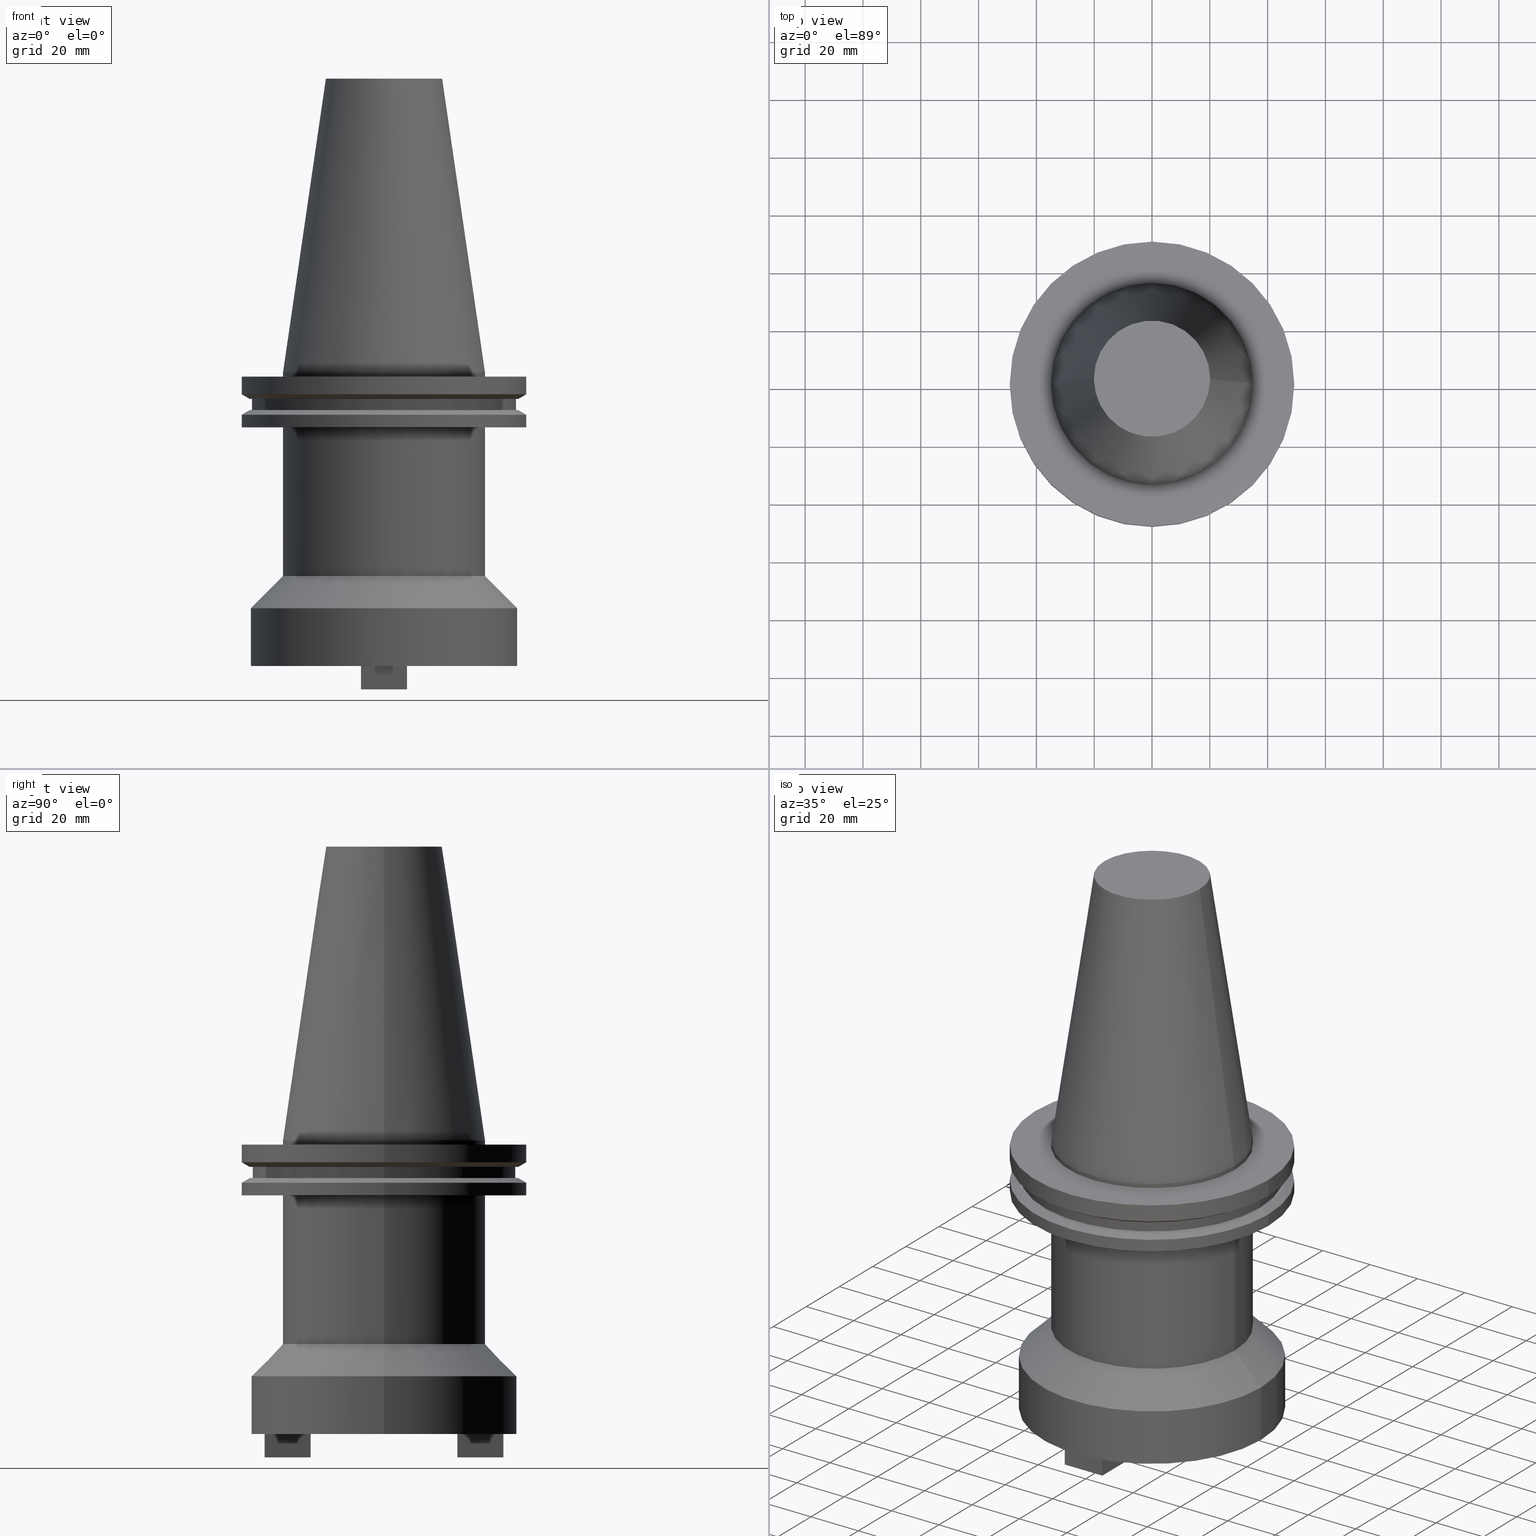
[diagram: canonical four-view strip — front | top / right | iso, engineering-drawing reading convention]
A machine part, canonical four-view strip (front | top / right | iso — engineering-drawing reading convention). The complete STEP part file that produces these views, byte-faithful:
ISO-10303-21;
HEADER;
FILE_DESCRIPTION (( 'STEP AP203' ),
    '1' );
FILE_NAME ('BCV50-SMC1_500-4.stp',
    '2022-03-03T20:18:03',
    ( '' ),
    ( '' ),
    'SwSTEP 2.0',
    'SolidWorks 2021',
    '' );
FILE_SCHEMA (( 'CONFIG_CONTROL_DESIGN' ));
ENDSEC;

DATA;
#1 = DIRECTION ( 'NONE',  ( -0.000000000000000000, -0.000000000000000000, 1.000000000000000000 ) ) ;
#2 = DIRECTION ( 'NONE',  ( -0.000000000000000000, -0.000000000000000000, 1.000000000000000000 ) ) ;
#3 = VECTOR ( 'NONE', #907, 1000.000000000000000 ) ;
#4 = ORIENTED_EDGE ( 'NONE', *, *, #772, .T. ) ;
#5 = AXIS2_PLACEMENT_3D ( 'NONE', #429, #869, #590 ) ;
#6 = EDGE_CURVE ( 'NONE', #923, #1053, #1014, .T. ) ;
#7 = ORIENTED_EDGE ( 'NONE', *, *, #880, .T. ) ;
#8 = FACE_BOUND ( 'NONE', #1106, .T. ) ;
#9 = CARTESIAN_POINT ( 'NONE',  ( -34.92499999999999005, 0.000000000000000000, 0.000000000000000000 ) ) ;
#10 = DIRECTION ( 'NONE',  ( -4.369580544022185212E-16, 1.000000000000000000, 0.000000000000000000 ) ) ;
#11 = ORIENTED_EDGE ( 'NONE', *, *, #246, .T. ) ;
#12 = ORIENTED_EDGE ( 'NONE', *, *, #641, .T. ) ;
#13 = EDGE_CURVE ( 'NONE', #582, #614, #744, .T. ) ;
#14 = CARTESIAN_POINT ( 'NONE',  ( -1.803762848572357308E-14, -41.27999999999998693, -109.6800000000000068 ) ) ;
#15 = LINE ( 'NONE', #361, #683 ) ;
#16 = EDGE_LOOP ( 'NONE', ( #763, #644, #320, #853 ) ) ;
#17 = ORIENTED_EDGE ( 'NONE', *, *, #217, .T. ) ;
#18 = APPROVAL_ROLE ( '' ) ;
#19 = ADVANCED_FACE ( 'NONE', ( #848 ), #435, .F. ) ;
#20 = AXIS2_PLACEMENT_3D ( 'NONE', #698, #623, #870 ) ;
#21 = DIRECTION ( 'NONE',  ( 1.000000000000000000, 0.000000000000000000, 0.000000000000000000 ) ) ;
#22 = AXIS2_PLACEMENT_3D ( 'NONE', #1104, #273, #81 ) ;
#23 = DIRECTION ( 'NONE',  ( 1.000000000000000000, 0.000000000000000000, 0.000000000000000000 ) ) ;
#24 = ORIENTED_EDGE ( 'NONE', *, *, #1073, .F. ) ;
#25 = ORIENTED_EDGE ( 'NONE', *, *, #772, .F. ) ;
#26 = PERSON_AND_ORGANIZATION ( #987, #475 ) ;
#27 = DIRECTION ( 'NONE',  ( -0.000000000000000000, -0.000000000000000000, 1.000000000000000000 ) ) ;
#28 = DIRECTION ( 'NONE',  ( 1.000000000000000000, 0.000000000000000000, 0.000000000000000000 ) ) ;
#29 = DIRECTION ( 'NONE',  ( 0.000000000000000000, 0.000000000000000000, -1.000000000000000000 ) ) ;
#30 = VERTEX_POINT ( 'NONE', #1051 ) ;
#31 = PERSON_AND_ORGANIZATION ( #987, #475 ) ;
#32 = LINE ( 'NONE', #43, #571 ) ;
#33 = EDGE_CURVE ( 'NONE', #501, #667, #95, .T. ) ;
#34 = DIRECTION ( 'NONE',  ( 1.000000000000000000, 0.000000000000000000, 0.000000000000000000 ) ) ;
#35 = ORIENTED_EDGE ( 'NONE', *, *, #979, .T. ) ;
#36 = VERTEX_POINT ( 'NONE', #1045 ) ;
#37 = VECTOR ( 'NONE', #416, 1000.000000000000000 ) ;
#38 = PRODUCT_DEFINITION_FORMATION_WITH_SPECIFIED_SOURCE ( 'ANY', '', #642, .NOT_KNOWN. ) ;
#39 = CYLINDRICAL_SURFACE ( 'NONE', #815, 8.729999999999991545 ) ;
#40 = ORIENTED_EDGE ( 'NONE', *, *, #240, .T. ) ;
#41 = MECHANICAL_CONTEXT ( 'NONE', #1071, 'mechanical' ) ;
#42 = AXIS2_PLACEMENT_3D ( 'NONE', #184, #178, #446 ) ;
#43 = CARTESIAN_POINT ( 'NONE',  ( 7.939999999999995950, 1.734723475976805714E-15, -101.5999999999999943 ) ) ;
#44 = PLANE ( 'NONE',  #142 ) ;
#45 = CYLINDRICAL_SURFACE ( 'NONE', #474, 8.729999999999991545 ) ;
#46 = DIRECTION ( 'NONE',  ( -1.000000000000000000, 0.000000000000000000, -0.000000000000000000 ) ) ;
#47 = FACE_OUTER_BOUND ( 'NONE', #700, .T. ) ;
#48 = AXIS2_PLACEMENT_3D ( 'NONE', #243, #433, #1023 ) ;
#49 = CARTESIAN_POINT ( 'NONE',  ( 0.000000000000000000, 0.000000000000000000, -9.204999999999991189 ) ) ;
#50 = CARTESIAN_POINT ( 'NONE',  ( 0.000000000000000000, 0.000000000000000000, -109.6800000000000068 ) ) ;
#51 = AXIS2_PLACEMENT_3D ( 'NONE', #877, #374, #21 ) ;
#52 = EDGE_LOOP ( 'NONE', ( #595, #487, #819, #962 ) ) ;
#53 = CARTESIAN_POINT ( 'NONE',  ( -1.803762848572357308E-14, -41.27999999999998693, -109.6800000000000068 ) ) ;
#54 = LINE ( 'NONE', #492, #755 ) ;
#55 = DIRECTION ( 'NONE',  ( 1.000000000000000000, 0.000000000000000000, 0.000000000000000000 ) ) ;
#56 = EDGE_CURVE ( 'NONE', #442, #776, #101, .T. ) ;
#57 = FACE_OUTER_BOUND ( 'NONE', #448, .T. ) ;
#58 = CARTESIAN_POINT ( 'NONE',  ( -49.21500000000000341, 6.027099222003699404E-15, -7.602389855251287187 ) ) ;
#59 = LINE ( 'NONE', #592, #269 ) ;
#60 = EDGE_CURVE ( 'NONE', #432, #253, #624, .T. ) ;
#61 = EDGE_LOOP ( 'NONE', ( #930, #97 ) ) ;
#62 = ORIENTED_EDGE ( 'NONE', *, *, #957, .T. ) ;
#63 = DIRECTION ( 'NONE',  ( -0.000000000000000000, -0.000000000000000000, 1.000000000000000000 ) ) ;
#64 = LINE ( 'NONE', #915, #931 ) ;
#65 = PLANE ( 'NONE',  #883 ) ;
#66 = VECTOR ( 'NONE', #715, 1000.000000000000000 ) ;
#67 = ORIENTED_EDGE ( 'NONE', *, *, #1079, .T. ) ;
#68 = AXIS2_PLACEMENT_3D ( 'NONE', #749, #1086, #325 ) ;
#69 = EDGE_LOOP ( 'NONE', ( #525, #11, #593, #104 ) ) ;
#70 = CARTESIAN_POINT ( 'NONE',  ( 0.000000000000000000, 0.000000000000000000, -19.04999999999999716 ) ) ;
#71 = FACE_OUTER_BOUND ( 'NONE', #1011, .T. ) ;
#72 = ORIENTED_EDGE ( 'NONE', *, *, #489, .T. ) ;
#73 = EDGE_LOOP ( 'NONE', ( #967, #985, #351, #7 ) ) ;
#74 = CARTESIAN_POINT ( 'NONE',  ( -34.92499999999999716, 4.277078946022130887E-15, -19.04999999999999716 ) ) ;
#75 = CARTESIAN_POINT ( 'NONE',  ( 0.000000000000000000, 0.000000000000000000, 101.5999999999999943 ) ) ;
#76 = DIRECTION ( 'NONE',  ( -0.000000000000000000, -0.000000000000000000, 1.000000000000000000 ) ) ;
#77 = EDGE_LOOP ( 'NONE', ( #891, #892, #231, #802 ) ) ;
#78 = EDGE_LOOP ( 'NONE', ( #62, #1095 ) ) ;
#79 = CARTESIAN_POINT ( 'NONE',  ( -1.803762848572357308E-14, -41.27999999999998693, -101.5999999999999943 ) ) ;
#80 = ADVANCED_FACE ( 'NONE', ( #966, #1039 ), #354, .F. ) ;
#81 = DIRECTION ( 'NONE',  ( 1.000000000000000000, 0.000000000000000000, 0.000000000000000000 ) ) ;
#82 = CARTESIAN_POINT ( 'NONE',  ( 0.000000000000000000, 34.92499999999999716, -35.00000000000000000 ) ) ;
#83 = VERTEX_POINT ( 'NONE', #171 ) ;
#84 = VECTOR ( 'NONE', #991, 999.9999999999998863 ) ;
#85 = LOCAL_TIME ( 14, 18, 3.000000000000000000, #539 ) ;
#86 = EDGE_LOOP ( 'NONE', ( #203, #587 ) ) ;
#87 = CARTESIAN_POINT ( 'NONE',  ( 7.939999999999990621, 25.39999999999998792, -109.6800000000000068 ) ) ;
#88 = DIRECTION ( 'NONE',  ( -0.000000000000000000, -0.000000000000000000, 1.000000000000000000 ) ) ;
#89 = EDGE_CURVE ( 'NONE', #200, #469, #254, .T. ) ;
#90 = CARTESIAN_POINT ( 'NONE',  ( 34.92499999999999005, 4.277078946022130098E-15, 0.000000000000000000 ) ) ;
#91 = ORIENTED_EDGE ( 'NONE', *, *, #183, .F. ) ;
#92 = PLANE ( 'NONE',  #504 ) ;
#93 = CARTESIAN_POINT ( 'NONE',  ( 0.000000000000000000, 0.000000000000000000, -1.499999999999987566 ) ) ;
#94 = CARTESIAN_POINT ( 'NONE',  ( -34.92499999999999005, 4.277078946022130098E-15, 101.5999999999999943 ) ) ;
#95 = LINE ( 'NONE', #285, #779 ) ;
#96 = EDGE_LOOP ( 'NONE', ( #1022, #552, #632, #944 ) ) ;
#97 = ORIENTED_EDGE ( 'NONE', *, *, #921, .F. ) ;
#98 = DIRECTION ( 'NONE',  ( 0.000000000000000000, 0.000000000000000000, 1.000000000000000000 ) ) ;
#99 = CARTESIAN_POINT ( 'NONE',  ( -34.92499999999999716, 4.277078946022130887E-15, 101.5999999999999943 ) ) ;
#100 = CARTESIAN_POINT ( 'NONE',  ( 0.000000000000000000, 0.000000000000000000, -81.59999999999995168 ) ) ;
#101 = LINE ( 'NONE', #530, #1063 ) ;
#102 = ORIENTED_EDGE ( 'NONE', *, *, #830, .T. ) ;
#103 = CIRCLE ( 'NONE', #452, 45.64500000000000313 ) ;
#104 = ORIENTED_EDGE ( 'NONE', *, *, #1052, .F. ) ;
#105 = AXIS2_PLACEMENT_3D ( 'NONE', #499, #252, #746 ) ;
#106 = CARTESIAN_POINT ( 'NONE',  ( 0.000000000000000000, 0.000000000000000000, -14.65761014474876944 ) ) ;
#107 = CYLINDRICAL_SURFACE ( 'NONE', #51, 46.04999999999999716 ) ;
#108 = DIRECTION ( 'NONE',  ( -0.000000000000000000, -0.000000000000000000, 1.000000000000000000 ) ) ;
#109 = VERTEX_POINT ( 'NONE', #276 ) ;
#110 = CIRCLE ( 'NONE', #954, 45.64500000000000313 ) ;
#111 = VERTEX_POINT ( 'NONE', #630 ) ;
#112 = DATE_AND_TIME ( #532, #85 ) ;
#113 = VECTOR ( 'NONE', #1020, 1000.000000000000000 ) ;
#114 = EDGE_CURVE ( 'NONE', #811, #247, #372, .T. ) ;
#115 = CARTESIAN_POINT ( 'NONE',  ( 0.000000000000000000, 0.000000000000000000, -35.00000000000000000 ) ) ;
#116 = DIRECTION ( 'NONE',  ( -1.092395136005546426E-16, -1.000000000000000000, 0.000000000000000000 ) ) ;
#117 = CARTESIAN_POINT ( 'NONE',  ( 0.000000000000000000, 0.000000000000000000, -13.05499999999999794 ) ) ;
#118 = ORIENTED_EDGE ( 'NONE', *, *, #89, .T. ) ;
#119 = CALENDAR_DATE ( 2022, 3, 3 ) ;
#120 = DIRECTION ( 'NONE',  ( -0.8660254037844273833, 1.060575238724893110E-16, 0.5000000000000195399 ) ) ;
#121 = EDGE_CURVE ( 'NONE', #237, #506, #453, .T. ) ;
#122 = FACE_OUTER_BOUND ( 'NONE', #789, .T. ) ;
#123 = ORIENTED_EDGE ( 'NONE', *, *, #262, .F. ) ;
#124 = VECTOR ( 'NONE', #120, 1000.000000000000000 ) ;
#125 = CARTESIAN_POINT ( 'NONE',  ( -7.940000000000009273, 25.39999999999998792, -101.5999999999999943 ) ) ;
#126 = AXIS2_PLACEMENT_3D ( 'NONE', #1013, #347, #932 ) ;
#127 = AXIS2_PLACEMENT_3D ( 'NONE', #368, #1043, #282 ) ;
#128 = VECTOR ( 'NONE', #338, 1000.000000000000000 ) ;
#129 = DIRECTION ( 'NONE',  ( -0.000000000000000000, -0.000000000000000000, 1.000000000000000000 ) ) ;
#130 = EDGE_CURVE ( 'NONE', #146, #545, #577, .T. ) ;
#131 = LINE ( 'NONE', #971, #156 ) ;
#132 = CYLINDRICAL_SURFACE ( 'NONE', #678, 49.21499999999999631 ) ;
#133 = ADVANCED_FACE ( 'NONE', ( #618 ), #805, .T. ) ;
#134 = FACE_OUTER_BOUND ( 'NONE', #77, .T. ) ;
#135 = DIRECTION ( 'NONE',  ( -0.7071067811865489050, 0.000000000000000000, -0.7071067811865462405 ) ) ;
#136 = DIRECTION ( 'NONE',  ( 1.000000000000000000, 0.000000000000000000, 0.000000000000000000 ) ) ;
#137 = ORIENTED_EDGE ( 'NONE', *, *, #994, .T. ) ;
#138 = LINE ( 'NONE', #840, #245 ) ;
#139 = AXIS2_PLACEMENT_3D ( 'NONE', #257, #1029, #946 ) ;
#140 = FACE_OUTER_BOUND ( 'NONE', #162, .T. ) ;
#141 = CARTESIAN_POINT ( 'NONE',  ( 45.64500000000000313, 0.000000000000000000, -9.204999999999991189 ) ) ;
#142 = AXIS2_PLACEMENT_3D ( 'NONE', #50, #308, #46 ) ;
#143 = DIRECTION ( 'NONE',  ( -0.000000000000000000, -0.000000000000000000, 1.000000000000000000 ) ) ;
#144 = FACE_OUTER_BOUND ( 'NONE', #414, .T. ) ;
#145 = AXIS2_PLACEMENT_3D ( 'NONE', #1101, #339, #675 ) ;
#146 = VERTEX_POINT ( 'NONE', #705 ) ;
#147 = DIRECTION ( 'NONE',  ( -0.000000000000000000, -0.000000000000000000, 1.000000000000000000 ) ) ;
#148 = LINE ( 'NONE', #238, #456 ) ;
#149 = ADVANCED_FACE ( 'NONE', ( #943 ), #264, .T. ) ;
#150 = VERTEX_POINT ( 'NONE', #441 ) ;
#151 = ORIENTED_EDGE ( 'NONE', *, *, #357, .F. ) ;
#152 =( LENGTH_UNIT ( ) NAMED_UNIT ( * ) SI_UNIT ( .MILLI., .METRE. ) );
#153 = CARTESIAN_POINT ( 'NONE',  ( 7.939999999999995950, 1.734723475976805714E-15, -109.6800000000000068 ) ) ;
#154 = AXIS2_PLACEMENT_3D ( 'NONE', #93, #1, #949 ) ;
#155 = ORIENTED_EDGE ( 'NONE', *, *, #246, .F. ) ;
#156 = VECTOR ( 'NONE', #116, 1000.000000000000000 ) ;
#157 = ORIENTED_EDGE ( 'NONE', *, *, #798, .F. ) ;
#158 = DIRECTION ( 'NONE',  ( 0.000000000000000000, -0.000000000000000000, 1.000000000000000000 ) ) ;
#159 = DIRECTION ( 'NONE',  ( -0.000000000000000000, -0.000000000000000000, 1.000000000000000000 ) ) ;
#160 = CARTESIAN_POINT ( 'NONE',  ( 7.939999999999990621, -41.28000000000000114, -101.5999999999999943 ) ) ;
#161 = ORIENTED_EDGE ( 'NONE', *, *, #914, .T. ) ;
#162 = EDGE_LOOP ( 'NONE', ( #874, #35, #753, #355 ) ) ;
#163 = EDGE_CURVE ( 'NONE', #247, #811, #110, .T. ) ;
#164 = DIRECTION ( 'NONE',  ( -1.092395136005546426E-16, -1.000000000000000000, 0.000000000000000000 ) ) ;
#165 = DIRECTION ( 'NONE',  ( -0.000000000000000000, -0.000000000000000000, 1.000000000000000000 ) ) ;
#166 = APPROVAL ( #189, 'UNSPECIFIED' ) ;
#167 = ORIENTED_EDGE ( 'NONE', *, *, #680, .T. ) ;
#168 = DIRECTION ( 'NONE',  ( 0.000000000000000000, -0.000000000000000000, 1.000000000000000000 ) ) ;
#169 = DIRECTION ( 'NONE',  ( 1.000000000000000000, 0.000000000000000000, 0.000000000000000000 ) ) ;
#170 = DIRECTION ( 'NONE',  ( 1.000000000000000000, 0.000000000000000000, 0.000000000000000000 ) ) ;
#171 = CARTESIAN_POINT ( 'NONE',  ( -7.940000000000009273, 25.39999999999998792, -109.6800000000000068 ) ) ;
#172 = AXIS2_PLACEMENT_3D ( 'NONE', #829, #404, #651 ) ;
#173 = EDGE_LOOP ( 'NONE', ( #249, #482 ) ) ;
#174 = AXIS2_PLACEMENT_3D ( 'NONE', #82, #942, #263 ) ;
#175 = CARTESIAN_POINT ( 'NONE',  ( -34.92499999999999716, 4.277078946022130887E-15, -70.47499999999999432 ) ) ;
#176 = CARTESIAN_POINT ( 'NONE',  ( 0.000000000000000000, 0.000000000000000000, -9.204999999999991189 ) ) ;
#177 = CARTESIAN_POINT ( 'NONE',  ( 0.000000000000000000, 0.000000000000000000, -101.5999999999999943 ) ) ;
#178 = DIRECTION ( 'NONE',  ( -0.000000000000000000, -0.000000000000000000, 1.000000000000000000 ) ) ;
#179 = ORIENTED_EDGE ( 'NONE', *, *, #567, .T. ) ;
#180 = APPROVAL_ROLE ( '' ) ;
#181 = FACE_OUTER_BOUND ( 'NONE', #437, .T. ) ;
#182 = CC_DESIGN_PERSON_AND_ORGANIZATION_ASSIGNMENT ( #26, #209, ( #1075 ) ) ;
#183 = EDGE_CURVE ( 'NONE', #237, #827, #742, .T. ) ;
#184 = CARTESIAN_POINT ( 'NONE',  ( 0.000000000000000000, 0.000000000000000000, -81.59999999999995168 ) ) ;
#185 = ORIENTED_EDGE ( 'NONE', *, *, #56, .T. ) ;
#186 = ADVANCED_FACE ( 'NONE', ( #381 ), #795, .F. ) ;
#187 = ORIENTED_EDGE ( 'NONE', *, *, #13, .T. ) ;
#188 = VECTOR ( 'NONE', #765, 1000.000000000000000 ) ;
#189 = APPROVAL_STATUS ( 'not_yet_approved' ) ;
#190 = DIRECTION ( 'NONE',  ( -0.000000000000000000, -0.000000000000000000, 1.000000000000000000 ) ) ;
#191 = CARTESIAN_POINT ( 'NONE',  ( 0.000000000000000000, 0.000000000000000000, -19.04999999999999716 ) ) ;
#192 = CARTESIAN_POINT ( 'NONE',  ( 0.000000000000000000, 45.64500000000000313, -13.05499999999999794 ) ) ;
#193 = AXIS2_PLACEMENT_3D ( 'NONE', #1067, #725, #1048 ) ;
#194 = EDGE_LOOP ( 'NONE', ( #718, #335, #639, #4 ) ) ;
#195 = PERSON_AND_ORGANIZATION ( #987, #475 ) ;
#196 = VECTOR ( 'NONE', #936, 1000.000000000000000 ) ;
#197 = LINE ( 'NONE', #99, #66 ) ;
#198 = CARTESIAN_POINT ( 'NONE',  ( 49.21499999999998920, 0.000000000000000000, -19.04999999999999716 ) ) ;
#199 = CARTESIAN_POINT ( 'NONE',  ( 0.000000000000000000, 0.000000000000000000, -9.204999999999991189 ) ) ;
#200 = VERTEX_POINT ( 'NONE', #90 ) ;
#201 = CIRCLE ( 'NONE', #887, 46.43919780457007818 ) ;
#202 = APPROVAL ( #476, 'UNSPECIFIED' ) ;
#203 = ORIENTED_EDGE ( 'NONE', *, *, #729, .T. ) ;
#204 = COORDINATED_UNIVERSAL_TIME_OFFSET ( 6, 0, .BEHIND. ) ;
#205 = CARTESIAN_POINT ( 'NONE',  ( -46.43919780457007818, 5.687161494633754392E-15, -9.204999999999991189 ) ) ;
#206 = ADVANCED_FACE ( 'NONE', ( #550 ), #890, .T. ) ;
#207 = LINE ( 'NONE', #980, #3 ) ;
#208 = ORIENTED_EDGE ( 'NONE', *, *, #439, .F. ) ;
#209 = PERSON_AND_ORGANIZATION_ROLE ( 'classification_officer' ) ;
#210 = EDGE_CURVE ( 'NONE', #1053, #605, #15, .T. ) ;
#211 = LINE ( 'NONE', #280, #323 ) ;
#212 = DIRECTION ( 'NONE',  ( -0.000000000000000000, -0.000000000000000000, 1.000000000000000000 ) ) ;
#213 = ORIENTED_EDGE ( 'NONE', *, *, #670, .T. ) ;
#214 = VECTOR ( 'NONE', #803, 1000.000000000000000 ) ;
#215 = LINE ( 'NONE', #1092, #809 ) ;
#216 = CIRCLE ( 'NONE', #312, 46.43919780457007818 ) ;
#217 = EDGE_CURVE ( 'NONE', #619, #111, #201, .T. ) ;
#218 = DIRECTION ( 'NONE',  ( -1.092395136005546303E-16, -1.000000000000000000, 0.000000000000000000 ) ) ;
#219 = AXIS2_PLACEMENT_3D ( 'NONE', #75, #1037, #244 ) ;
#220 = DIRECTION ( 'NONE',  ( 1.000000000000000000, 0.000000000000000000, 0.000000000000000000 ) ) ;
#221 = FACE_OUTER_BOUND ( 'NONE', #52, .T. ) ;
#222 = ORIENTED_EDGE ( 'NONE', *, *, #791, .T. ) ;
#223 = CYLINDRICAL_SURFACE ( 'NONE', #607, 45.64500000000000313 ) ;
#224 = CARTESIAN_POINT ( 'NONE',  ( 0.000000000000000000, 46.43919780457007818, -9.204999999999998295 ) ) ;
#225 = DIRECTION ( 'NONE',  ( -0.000000000000000000, -0.000000000000000000, 1.000000000000000000 ) ) ;
#226 = DIRECTION ( 'NONE',  ( -1.000000000000000000, 4.369580544022184226E-16, 0.000000000000000000 ) ) ;
#227 = CIRCLE ( 'NONE', #488, 20.10819343178871321 ) ;
#228 = DIRECTION ( 'NONE',  ( 1.000000000000000000, 0.000000000000000000, 0.000000000000000000 ) ) ;
#229 = CARTESIAN_POINT ( 'NONE',  ( 7.939999999999987068, 41.27999999999999403, -109.6800000000000068 ) ) ;
#230 = CIRCLE ( 'NONE', #863, 34.92499999999999716 ) ;
#231 = ORIENTED_EDGE ( 'NONE', *, *, #871, .T. ) ;
#232 = AXIS2_PLACEMENT_3D ( 'NONE', #817, #653, #810 ) ;
#233 = ADVANCED_FACE ( 'NONE', ( #122 ), #1074, .T. ) ;
#234 = DIRECTION ( 'NONE',  ( 1.000000000000000000, 0.000000000000000000, 0.000000000000000000 ) ) ;
#235 = EDGE_CURVE ( 'NONE', #1032, #150, #1019, .T. ) ;
#236 = ORIENTED_EDGE ( 'NONE', *, *, #514, .T. ) ;
#237 = VERTEX_POINT ( 'NONE', #1064 ) ;
#238 = CARTESIAN_POINT ( 'NONE',  ( 34.92499999999999005, 4.277078946022130098E-15, 0.000000000000000000 ) ) ;
#239 = DIRECTION ( 'NONE',  ( 1.000000000000000000, 0.000000000000000000, 0.000000000000000000 ) ) ;
#240 = EDGE_CURVE ( 'NONE', #465, #667, #978, .T. ) ;
#241 = ORIENTED_EDGE ( 'NONE', *, *, #235, .T. ) ;
#242 = ORIENTED_EDGE ( 'NONE', *, *, #375, .T. ) ;
#243 = CARTESIAN_POINT ( 'NONE',  ( -7.940000000000009273, 0.000000000000000000, -109.6800000000000068 ) ) ;
#244 = DIRECTION ( 'NONE',  ( 1.000000000000000000, 0.000000000000000000, 0.000000000000000000 ) ) ;
#245 = VECTOR ( 'NONE', #1085, 1000.000000000000000 ) ;
#246 = EDGE_CURVE ( 'NONE', #767, #109, #207, .T. ) ;
#247 = VERTEX_POINT ( 'NONE', #141 ) ;
#248 = AXIS2_PLACEMENT_3D ( 'NONE', #541, #800, #28 ) ;
#249 = ORIENTED_EDGE ( 'NONE', *, *, #240, .F. ) ;
#250 = AXIS2_PLACEMENT_3D ( 'NONE', #786, #29, #376 ) ;
#251 = LINE ( 'NONE', #856, #329 ) ;
#252 = DIRECTION ( 'NONE',  ( -0.000000000000000000, -0.000000000000000000, 1.000000000000000000 ) ) ;
#253 = VERTEX_POINT ( 'NONE', #555 ) ;
#254 = CIRCLE ( 'NONE', #564, 34.92499999999999005 ) ;
#255 = ORIENTED_EDGE ( 'NONE', *, *, #751, .T. ) ;
#256 = ADVANCED_FACE ( 'NONE', ( #221 ), #1061, .T. ) ;
#257 = CARTESIAN_POINT ( 'NONE',  ( 0.000000000000000000, 0.000000000000000000, -1.499999999999987566 ) ) ;
#258 = DIRECTION ( 'NONE',  ( 1.000000000000000000, 0.000000000000000000, 0.000000000000000000 ) ) ;
#259 = DIRECTION ( 'NONE',  ( -0.000000000000000000, -0.000000000000000000, 1.000000000000000000 ) ) ;
#260 = DIRECTION ( 'NONE',  ( -0.000000000000000000, -0.000000000000000000, 1.000000000000000000 ) ) ;
#261 = EDGE_LOOP ( 'NONE', ( #422, #179, #385, #1003 ) ) ;
#262 = EDGE_CURVE ( 'NONE', #111, #614, #643, .T. ) ;
#263 = DIRECTION ( 'NONE',  ( 1.000000000000000000, 0.000000000000000000, 0.000000000000000000 ) ) ;
#264 = CYLINDRICAL_SURFACE ( 'NONE', #461, 34.92499999999999716 ) ;
#265 = ORIENTED_EDGE ( 'NONE', *, *, #529, .F. ) ;
#266 = VECTOR ( 'NONE', #882, 1000.000000000000000 ) ;
#267 = AXIS2_PLACEMENT_3D ( 'NONE', #855, #98, #386 ) ;
#268 = EDGE_LOOP ( 'NONE', ( #185, #508, #1058, #167 ) ) ;
#269 = VECTOR ( 'NONE', #411, 1000.000000000000114 ) ;
#270 = PRODUCT_RELATED_PRODUCT_CATEGORY ( 'detail', '', ( #642 ) ) ;
#271 = DATE_TIME_ROLE ( 'creation_date' ) ;
#272 = ADVANCED_FACE ( 'NONE', ( #896 ), #305, .T. ) ;
#273 = DIRECTION ( 'NONE',  ( -0.000000000000000000, -0.000000000000000000, 1.000000000000000000 ) ) ;
#274 = FACE_OUTER_BOUND ( 'NONE', #173, .T. ) ;
#275 = ADVANCED_FACE ( 'NONE', ( #1069 ), #39, .F. ) ;
#276 = CARTESIAN_POINT ( 'NONE',  ( -7.940000000000009273, -25.39999999999998437, -101.5999999999999943 ) ) ;
#277 = ORIENTED_EDGE ( 'NONE', *, *, #670, .F. ) ;
#278 = AXIS2_PLACEMENT_3D ( 'NONE', #334, #165, #671 ) ;
#279 = DATE_TIME_ROLE ( 'classification_date' ) ;
#280 = CARTESIAN_POINT ( 'NONE',  ( 7.939999999999994174, -25.39999999999999147, -109.6800000000000068 ) ) ;
#281 = ADVANCED_FACE ( 'NONE', ( #989 ), #132, .T. ) ;
#282 = DIRECTION ( 'NONE',  ( 1.000000000000000000, 0.000000000000000000, 0.000000000000000000 ) ) ;
#283 = PRODUCT_DEFINITION_SHAPE ( 'NONE', 'NONE',  #656 ) ;
#284 = ADVANCED_FACE ( 'NONE', ( #481 ), #557, .T. ) ;
#285 = CARTESIAN_POINT ( 'NONE',  ( -8.729999999999991545, 1.069116655655638388E-15, 0.000000000000000000 ) ) ;
#286 = EDGE_LOOP ( 'NONE', ( #1040, #346, #12, #242 ) ) ;
#287 = ORIENTED_EDGE ( 'NONE', *, *, #483, .T. ) ;
#288 = CONICAL_SURFACE ( 'NONE', #747, 46.43919780457007818, 1.047197551196575205 ) ;
#289 = LINE ( 'NONE', #730, #1002 ) ;
#290 = DIRECTION ( 'NONE',  ( -0.000000000000000000, -0.000000000000000000, 1.000000000000000000 ) ) ;
#291 = DIRECTION ( 'NONE',  ( -0.000000000000000000, -0.000000000000000000, 1.000000000000000000 ) ) ;
#292 = ORIENTED_EDGE ( 'NONE', *, *, #114, .F. ) ;
#293 = EDGE_CURVE ( 'NONE', #873, #501, #326, .T. ) ;
#294 = VECTOR ( 'NONE', #424, 1000.000000000000000 ) ;
#295 = ORIENTED_EDGE ( 'NONE', *, *, #957, .F. ) ;
#296 = CALENDAR_DATE ( 2022, 3, 3 ) ;
#297 = AXIS2_PLACEMENT_3D ( 'NONE', #998, #569, #910 ) ;
#298 = DIRECTION ( 'NONE',  ( 1.000000000000000000, 0.000000000000000000, 0.000000000000000000 ) ) ;
#299 = CARTESIAN_POINT ( 'NONE',  ( 0.000000000000000000, 0.000000000000000000, -101.5999999999999943 ) ) ;
#300 = ORIENTED_EDGE ( 'NONE', *, *, #262, .T. ) ;
#301 = VECTOR ( 'NONE', #637, 1000.000000000000000 ) ;
#302 = ORIENTED_EDGE ( 'NONE', *, *, #60, .F. ) ;
#303 = SHAPE_DEFINITION_REPRESENTATION ( #283, #939 ) ;
#304 = CARTESIAN_POINT ( 'NONE',  ( 7.939999999999994174, -25.39999999999999147, -101.5999999999999943 ) ) ;
#305 = PLANE ( 'NONE',  #867 ) ;
#306 = ORIENTED_EDGE ( 'NONE', *, *, #994, .F. ) ;
#307 = CARTESIAN_POINT ( 'NONE',  ( -46.43919780457007818, 0.000000000000000000, -13.05499999999999794 ) ) ;
#308 = DIRECTION ( 'NONE',  ( 0.000000000000000000, 0.000000000000000000, -1.000000000000000000 ) ) ;
#309 = CONICAL_SURFACE ( 'NONE', #928, 49.21499999999998920, 1.047197551196554333 ) ;
#310 = CIRCLE ( 'NONE', #792, 8.729999999999995097 ) ;
#311 = LINE ( 'NONE', #664, #37 ) ;
#312 = AXIS2_PLACEMENT_3D ( 'NONE', #49, #579, #228 ) ;
#313 = DIRECTION ( 'NONE',  ( 4.369580544022182254E-16, 1.000000000000000000, 0.000000000000000000 ) ) ;
#314 = ORIENTED_EDGE ( 'NONE', *, *, #523, .T. ) ;
#315 = AXIS2_PLACEMENT_3D ( 'NONE', #711, #260, #23 ) ;
#316 = DIRECTION ( 'NONE',  ( -0.000000000000000000, -0.000000000000000000, 1.000000000000000000 ) ) ;
#317 = FACE_OUTER_BOUND ( 'NONE', #96, .T. ) ;
#318 = LINE ( 'NONE', #756, #417 ) ;
#319 = CARTESIAN_POINT ( 'NONE',  ( 0.000000000000000000, 0.000000000000000000, 0.000000000000000000 ) ) ;
#320 = ORIENTED_EDGE ( 'NONE', *, *, #1079, .F. ) ;
#321 = ADVANCED_FACE ( 'NONE', ( #824 ), #44, .T. ) ;
#322 = DIRECTION ( 'NONE',  ( -0.000000000000000000, -0.000000000000000000, 1.000000000000000000 ) ) ;
#323 = VECTOR ( 'NONE', #814, 1000.000000000000000 ) ;
#324 = CC_DESIGN_APPROVAL ( #166, ( #656 ) ) ;
#325 = DIRECTION ( 'NONE',  ( -1.000000000000000000, 0.000000000000000000, 0.000000000000000000 ) ) ;
#326 = CIRCLE ( 'NONE', #650, 8.729999999999995097 ) ;
#327 = ORIENTED_EDGE ( 'NONE', *, *, #594, .F. ) ;
#328 = ORIENTED_EDGE ( 'NONE', *, *, #331, .T. ) ;
#329 = VECTOR ( 'NONE', #164, 1000.000000000000000 ) ;
#330 = DIRECTION ( 'NONE',  ( 4.369580544022184226E-16, 1.000000000000000000, 0.000000000000000000 ) ) ;
#331 = EDGE_CURVE ( 'NONE', #344, #688, #406, .T. ) ;
#332 = DIRECTION ( 'NONE',  ( 0.1443082272672999988, 1.767266086135277066E-17, -0.9895327864921755756 ) ) ;
#333 = LINE ( 'NONE', #1018, #128 ) ;
#334 = CARTESIAN_POINT ( 'NONE',  ( 0.000000000000000000, 0.000000000000000000, -7.602389855251287187 ) ) ;
#335 = ORIENTED_EDGE ( 'NONE', *, *, #523, .F. ) ;
#336 = LINE ( 'NONE', #673, #648 ) ;
#337 = ADVANCED_FACE ( 'NONE', ( #317 ), #658, .T. ) ;
#338 = DIRECTION ( 'NONE',  ( -0.000000000000000000, -0.000000000000000000, 1.000000000000000000 ) ) ;
#339 = DIRECTION ( 'NONE',  ( 0.000000000000000000, 1.000000000000000000, 0.000000000000000000 ) ) ;
#340 = ORIENTED_EDGE ( 'NONE', *, *, #1068, .T. ) ;
#341 = CARTESIAN_POINT ( 'NONE',  ( -20.10819343178871321, 0.000000000000000000, 101.5999999999999801 ) ) ;
#342 = CARTESIAN_POINT ( 'NONE',  ( 7.939999999999987068, 41.27999999999999403, -101.5999999999999943 ) ) ;
#343 = CC_DESIGN_SECURITY_CLASSIFICATION ( #1075, ( #38 ) ) ;
#344 = VERTEX_POINT ( 'NONE', #229 ) ;
#345 = VECTOR ( 'NONE', #2, 1000.000000000000000 ) ;
#346 = ORIENTED_EDGE ( 'NONE', *, *, #235, .F. ) ;
#347 = DIRECTION ( 'NONE',  ( -0.000000000000000000, -0.000000000000000000, 1.000000000000000000 ) ) ;
#348 = CARTESIAN_POINT ( 'NONE',  ( -1.803762848572357623E-14, 41.27999999999998693, -101.5999999999999943 ) ) ;
#349 = CARTESIAN_POINT ( 'NONE',  ( 0.000000000000000000, 0.000000000000000000, -19.04999999999999716 ) ) ;
#350 = ORIENTED_EDGE ( 'NONE', *, *, #729, .F. ) ;
#351 = ORIENTED_EDGE ( 'NONE', *, *, #689, .T. ) ;
#352 = DIRECTION ( 'NONE',  ( 1.000000000000000000, 0.000000000000000000, 0.000000000000000000 ) ) ;
#353 = FACE_OUTER_BOUND ( 'NONE', #261, .T. ) ;
#354 = PLANE ( 'NONE',  #395 ) ;
#355 = ORIENTED_EDGE ( 'NONE', *, *, #674, .F. ) ;
#356 = ORIENTED_EDGE ( 'NONE', *, *, #844, .T. ) ;
#357 = EDGE_CURVE ( 'NONE', #500, #506, #516, .T. ) ;
#358 = CARTESIAN_POINT ( 'NONE',  ( 0.000000000000000000, 49.21499999999998920, -19.04999999999999716 ) ) ;
#359 = EDGE_CURVE ( 'NONE', #827, #253, #59, .T. ) ;
#360 = CARTESIAN_POINT ( 'NONE',  ( 7.939999999999990621, 25.39999999999998792, -109.6800000000000068 ) ) ;
#361 = CARTESIAN_POINT ( 'NONE',  ( -1.109873458181633997E-14, -25.39999999999998792, -109.6800000000000068 ) ) ;
#362 = VERTEX_POINT ( 'NONE', #837 ) ;
#363 = AXIS2_PLACEMENT_3D ( 'NONE', #176, #1024, #352 ) ;
#364 = ORIENTED_EDGE ( 'NONE', *, *, #1068, .F. ) ;
#365 = AXIS2_PLACEMENT_3D ( 'NONE', #319, #575, #916 ) ;
#366 = CALENDAR_DATE ( 2022, 3, 3 ) ;
#367 = CARTESIAN_POINT ( 'NONE',  ( -7.940000000000007496, 41.27999999999998693, -109.6800000000000068 ) ) ;
#368 = CARTESIAN_POINT ( 'NONE',  ( 0.000000000000000000, 0.000000000000000000, -14.65761014474876944 ) ) ;
#369 = AXIS2_PLACEMENT_3D ( 'NONE', #1031, #370, #604 ) ;
#370 = DIRECTION ( 'NONE',  ( -0.000000000000000000, -0.000000000000000000, 1.000000000000000000 ) ) ;
#371 = VERTEX_POINT ( 'NONE', #160 ) ;
#372 = CIRCLE ( 'NONE', #315, 45.64500000000000313 ) ;
#373 = LINE ( 'NONE', #367, #266 ) ;
#374 = DIRECTION ( 'NONE',  ( -0.000000000000000000, -0.000000000000000000, 1.000000000000000000 ) ) ;
#375 = EDGE_CURVE ( 'NONE', #545, #146, #1004, .T. ) ;
#376 = DIRECTION ( 'NONE',  ( -1.000000000000000000, 0.000000000000000000, -0.000000000000000000 ) ) ;
#377 = EDGE_LOOP ( 'NONE', ( #1059, #463 ) ) ;
#378 = PERSON_AND_ORGANIZATION_ROLE ( 'design_owner' ) ;
#379 = LINE ( 'NONE', #988, #860 ) ;
#380 = APPROVAL ( #621, 'UNSPECIFIED' ) ;
#381 = FACE_OUTER_BOUND ( 'NONE', #86, .T. ) ;
#382 = VERTEX_POINT ( 'NONE', #679 ) ;
#383 = EDGE_CURVE ( 'NONE', #605, #109, #333, .T. ) ;
#384 = CIRCLE ( 'NONE', #588, 8.729999999999991545 ) ;
#385 = ORIENTED_EDGE ( 'NONE', *, *, #959, .T. ) ;
#386 = DIRECTION ( 'NONE',  ( 1.000000000000000000, 0.000000000000000000, 0.000000000000000000 ) ) ;
#387 = CIRCLE ( 'NONE', #127, 49.21499999999998920 ) ;
#388 = CARTESIAN_POINT ( 'NONE',  ( 0.000000000000000000, 0.000000000000000000, -101.5999999999999943 ) ) ;
#389 = DIRECTION ( 'NONE',  ( -0.000000000000000000, -0.000000000000000000, 1.000000000000000000 ) ) ;
#390 = EDGE_LOOP ( 'NONE', ( #638, #782, #612, #292 ) ) ;
#391 = AXIS2_PLACEMENT_3D ( 'NONE', #472, #313, #647 ) ;
#392 = ADVANCED_FACE ( 'NONE', ( #71 ), #65, .F. ) ;
#393 = VECTOR ( 'NONE', #108, 1000.000000000000000 ) ;
#394 = DIRECTION ( 'NONE',  ( 1.000000000000000000, 0.000000000000000000, 0.000000000000000000 ) ) ;
#395 = AXIS2_PLACEMENT_3D ( 'NONE', #192, #1026, #973 ) ;
#396 = DIRECTION ( 'NONE',  ( -0.000000000000000000, -0.000000000000000000, 1.000000000000000000 ) ) ;
#397 = ORIENTED_EDGE ( 'NONE', *, *, #914, .F. ) ;
#398 = ADVANCED_FACE ( 'NONE', ( #495 ), #430, .T. ) ;
#399 = CYLINDRICAL_SURFACE ( 'NONE', #825, 49.21499999999998920 ) ;
#400 = EDGE_CURVE ( 'NONE', #923, #371, #511, .T. ) ;
#401 = DIRECTION ( 'NONE',  ( 1.000000000000000000, 0.000000000000000000, 0.000000000000000000 ) ) ;
#402 = AXIS2_PLACEMENT_3D ( 'NONE', #905, #322, #822 ) ;
#403 = CIRCLE ( 'NONE', #126, 34.92499999999999716 ) ;
#404 = DIRECTION ( 'NONE',  ( 0.000000000000000000, 0.000000000000000000, -1.000000000000000000 ) ) ;
#405 = ADVANCED_FACE ( 'NONE', ( #925 ), #766, .T. ) ;
#406 = LINE ( 'NONE', #743, #813 ) ;
#407 = ORIENTED_EDGE ( 'NONE', *, *, #6, .T. ) ;
#408 = CARTESIAN_POINT ( 'NONE',  ( -7.940000000000009273, 25.39999999999998792, -109.6800000000000068 ) ) ;
#409 = DIRECTION ( 'NONE',  ( -0.000000000000000000, -0.000000000000000000, 1.000000000000000000 ) ) ;
#410 = EDGE_CURVE ( 'NONE', #873, #465, #1001, .T. ) ;
#411 = DIRECTION ( 'NONE',  ( -0.8660254037844169472, 0.000000000000000000, -0.5000000000000375255 ) ) ;
#412 = DIRECTION ( 'NONE',  ( 0.7071067811865489050, 8.659560562354950115E-17, -0.7071067811865462405 ) ) ;
#413 = FACE_OUTER_BOUND ( 'NONE', #454, .T. ) ;
#414 = EDGE_LOOP ( 'NONE', ( #91, #531, #551, #598 ) ) ;
#415 = EDGE_LOOP ( 'NONE', ( #213, #974, #750, #885 ) ) ;
#416 = DIRECTION ( 'NONE',  ( -0.000000000000000000, -0.000000000000000000, 1.000000000000000000 ) ) ;
#417 = VECTOR ( 'NONE', #316, 1000.000000000000000 ) ;
#418 = CARTESIAN_POINT ( 'NONE',  ( -46.04999999999999716, 0.000000000000000000, -81.59999999999995168 ) ) ;
#419 = AXIS2_PLACEMENT_3D ( 'NONE', #100, #793, #460 ) ;
#420 = CARTESIAN_POINT ( 'NONE',  ( 49.21499999999998920, 0.000000000000000000, 101.5999999999999943 ) ) ;
#421 = ORIENTED_EDGE ( 'NONE', *, *, #1044, .F. ) ;
#422 = ORIENTED_EDGE ( 'NONE', *, *, #838, .F. ) ;
#423 = ADVANCED_FACE ( 'NONE', ( #413 ), #847, .T. ) ;
#424 = DIRECTION ( 'NONE',  ( 2.184790272011092360E-16, 1.000000000000000000, 0.000000000000000000 ) ) ;
#425 = ORIENTED_EDGE ( 'NONE', *, *, #774, .T. ) ;
#426 = EDGE_LOOP ( 'NONE', ( #302, #340, #1015, #25 ) ) ;
#427 = FACE_BOUND ( 'NONE', #69, .T. ) ;
#428 = ADVANCED_FACE ( 'NONE', ( #144 ), #911, .T. ) ;
#429 = CARTESIAN_POINT ( 'NONE',  ( 0.000000000000000000, 49.21499999999999631, -1.499999999999992895 ) ) ;
#430 = CYLINDRICAL_SURFACE ( 'NONE', #633, 34.92499999999999005 ) ;
#431 = EDGE_LOOP ( 'NONE', ( #935, #364 ) ) ;
#432 = VERTEX_POINT ( 'NONE', #920 ) ;
#433 = DIRECTION ( 'NONE',  ( 1.000000000000000000, -0.000000000000000000, 0.000000000000000000 ) ) ;
#434 = CARTESIAN_POINT ( 'NONE',  ( -8.729999999999995097, 1.069116655655638782E-15, -101.5999999999999943 ) ) ;
#435 = PLANE ( 'NONE',  #145 ) ;
#436 = CIRCLE ( 'NONE', #990, 49.21500000000000341 ) ;
#437 = EDGE_LOOP ( 'NONE', ( #775, #255, #712, #123 ) ) ;
#438 = LINE ( 'NONE', #87, #188 ) ;
#439 = EDGE_CURVE ( 'NONE', #443, #469, #691, .T. ) ;
#440 = CARTESIAN_POINT ( 'NONE',  ( 7.939999999999990621, 25.39999999999998792, -101.5999999999999943 ) ) ;
#441 = CARTESIAN_POINT ( 'NONE',  ( 34.92499999999999716, 0.000000000000000000, -70.47499999999999432 ) ) ;
#442 = VERTEX_POINT ( 'NONE', #440 ) ;
#443 = VERTEX_POINT ( 'NONE', #603 ) ;
#444 =( NAMED_UNIT ( * ) SI_UNIT ( $, .STERADIAN. ) SOLID_ANGLE_UNIT ( ) );
#445 = CARTESIAN_POINT ( 'NONE',  ( 0.000000000000000000, 0.000000000000000000, 101.5999999999999801 ) ) ;
#446 = DIRECTION ( 'NONE',  ( 1.000000000000000000, 0.000000000000000000, 0.000000000000000000 ) ) ;
#447 = ORIENTED_EDGE ( 'NONE', *, *, #959, .F. ) ;
#448 = EDGE_LOOP ( 'NONE', ( #843, #473, #586, #151 ) ) ;
#449 = APPROVAL_DATE_TIME ( #695, #166 ) ;
#450 = CARTESIAN_POINT ( 'NONE',  ( -45.64500000000000313, 5.589900314708094957E-15, -9.204999999999991189 ) ) ;
#451 = DIRECTION ( 'NONE',  ( 1.000000000000000000, 0.000000000000000000, 0.000000000000000000 ) ) ;
#452 = AXIS2_PLACEMENT_3D ( 'NONE', #733, #748, #490 ) ;
#453 = LINE ( 'NONE', #468, #901 ) ;
#454 = EDGE_LOOP ( 'NONE', ( #1047, #350, #161, #682 ) ) ;
#455 = ORIENTED_EDGE ( 'NONE', *, *, #293, .T. ) ;
#456 = VECTOR ( 'NONE', #332, 999.9999999999998863 ) ;
#457 = COORDINATED_UNIVERSAL_TIME_OFFSET ( 6, 0, .BEHIND. ) ;
#458 = EDGE_CURVE ( 'NONE', #614, #582, #436, .T. ) ;
#459 = DIRECTION ( 'NONE',  ( -0.000000000000000000, -0.000000000000000000, 1.000000000000000000 ) ) ;
#460 = DIRECTION ( 'NONE',  ( -1.000000000000000000, 0.000000000000000000, 0.000000000000000000 ) ) ;
#461 = AXIS2_PLACEMENT_3D ( 'NONE', #611, #536, #801 ) ;
#462 = DIRECTION ( 'NONE',  ( 0.8660254037844169472, 1.060575238724880168E-16, -0.5000000000000375255 ) ) ;
#463 = ORIENTED_EDGE ( 'NONE', *, *, #567, .F. ) ;
#464 = CLOSED_SHELL ( 'NONE', ( #133, #256, #888, #398, #659, #668, #652, #428, #926, #405, #976, #423, #186, #149, #1097, #783, #919, #80, #1006, #634, #723, #281, #660, #836, #275, #556, #471, #1105, #484, #272, #206, #392, #19, #321, #233, #284, #912, #1021, #337 ) ) ;
#465 = VERTEX_POINT ( 'NONE', #710 ) ;
#466 = CC_DESIGN_PERSON_AND_ORGANIZATION_ASSIGNMENT ( #195, #378, ( #642 ) ) ;
#467 = DIRECTION ( 'NONE',  ( 1.000000000000000000, 0.000000000000000000, 0.000000000000000000 ) ) ;
#468 = CARTESIAN_POINT ( 'NONE',  ( 49.21499999999998920, 6.027099222003697037E-15, -14.65761014474876944 ) ) ;
#469 = VERTEX_POINT ( 'NONE', #9 ) ;
#470 = EDGE_LOOP ( 'NONE', ( #67, #975 ) ) ;
#471 = ADVANCED_FACE ( 'NONE', ( #353 ), #107, .T. ) ;
#472 = CARTESIAN_POINT ( 'NONE',  ( -1.109873458181633997E-14, -25.39999999999998792, -109.6800000000000068 ) ) ;
#473 = ORIENTED_EDGE ( 'NONE', *, *, #60, .T. ) ;
#474 = AXIS2_PLACEMENT_3D ( 'NONE', #834, #63, #220 ) ;
#475 = ORGANIZATION ( 'UNSPECIFIED', 'UNSPECIFIED', '' ) ;
#476 = APPROVAL_STATUS ( 'not_yet_approved' ) ;
#477 = CYLINDRICAL_SURFACE ( 'NONE', #697, 49.21499999999998920 ) ;
#478 = DIRECTION ( 'NONE',  ( 1.000000000000000000, 0.000000000000000000, 0.000000000000000000 ) ) ;
#479 = EDGE_CURVE ( 'NONE', #500, #432, #574, .T. ) ;
#480 = LINE ( 'NONE', #408, #503 ) ;
#481 = FACE_OUTER_BOUND ( 'NONE', #544, .T. ) ;
#482 = ORIENTED_EDGE ( 'NONE', *, *, #871, .F. ) ;
#483 = EDGE_CURVE ( 'NONE', #582, #36, #528, .T. ) ;
#484 = ADVANCED_FACE ( 'NONE', ( #274 ), #970, .F. ) ;
#485 = FACE_OUTER_BOUND ( 'NONE', #194, .T. ) ;
#486 = CARTESIAN_POINT ( 'NONE',  ( 7.939999999999999503, -1.734723475976807094E-15, -109.6800000000000068 ) ) ;
#487 = ORIENTED_EDGE ( 'NONE', *, *, #584, .T. ) ;
#488 = AXIS2_PLACEMENT_3D ( 'NONE', #602, #941, #169 ) ;
#489 = EDGE_CURVE ( 'NONE', #538, #83, #704, .T. ) ;
#490 = DIRECTION ( 'NONE',  ( 1.000000000000000000, 0.000000000000000000, 0.000000000000000000 ) ) ;
#491 = AXIS2_PLACEMENT_3D ( 'NONE', #486, #821, #993 ) ;
#492 = CARTESIAN_POINT ( 'NONE',  ( 46.04999999999999716, 5.639498510073560988E-15, -81.59999999999995168 ) ) ;
#493 = DIRECTION ( 'NONE',  ( -1.000000000000000000, 1.092395136005546303E-16, 0.000000000000000000 ) ) ;
#494 = AXIS2_PLACEMENT_3D ( 'NONE', #561, #833, #401 ) ;
#495 = FACE_OUTER_BOUND ( 'NONE', #721, .T. ) ;
#496 = EDGE_CURVE ( 'NONE', #1102, #581, #230, .T. ) ;
#497 = ORIENTED_EDGE ( 'NONE', *, *, #383, .F. ) ;
#498 = DIRECTION ( 'NONE',  ( 1.000000000000000000, 0.000000000000000000, 0.000000000000000000 ) ) ;
#499 = CARTESIAN_POINT ( 'NONE',  ( 0.000000000000000000, 0.000000000000000000, 101.5999999999999943 ) ) ;
#500 = VERTEX_POINT ( 'NONE', #198 ) ;
#501 = VERTEX_POINT ( 'NONE', #434 ) ;
#502 = CARTESIAN_POINT ( 'NONE',  ( -7.940000000000009273, -41.27999999999998693, -109.6800000000000068 ) ) ;
#503 = VECTOR ( 'NONE', #908, 1000.000000000000000 ) ;
#504 = AXIS2_PLACEMENT_3D ( 'NONE', #358, #158, #851 ) ;
#505 = CIRCLE ( 'NONE', #546, 34.92499999999999005 ) ;
#506 = VERTEX_POINT ( 'NONE', #522 ) ;
#507 = VECTOR ( 'NONE', #159, 1000.000000000000000 ) ;
#508 = ORIENTED_EDGE ( 'NONE', *, *, #880, .F. ) ;
#509 = FACE_OUTER_BOUND ( 'NONE', #431, .T. ) ;
#510 = CARTESIAN_POINT ( 'NONE',  ( 45.64500000000000313, 0.000000000000000000, 101.5999999999999943 ) ) ;
#511 = LINE ( 'NONE', #585, #1090 ) ;
#512 = ORIENTED_EDGE ( 'NONE', *, *, #804, .F. ) ;
#513 = EDGE_LOOP ( 'NONE', ( #1077, #17, #300, #518 ) ) ;
#514 = EDGE_CURVE ( 'NONE', #382, #768, #950, .T. ) ;
#515 = CARTESIAN_POINT ( 'NONE',  ( 34.92499999999999005, 0.000000000000000000, -1.499999999999987566 ) ) ;
#516 = LINE ( 'NONE', #420, #196 ) ;
#517 = ORIENTED_EDGE ( 'NONE', *, *, #720, .F. ) ;
#518 = ORIENTED_EDGE ( 'NONE', *, *, #13, .F. ) ;
#519 = LINE ( 'NONE', #1109, #294 ) ;
#520 = EDGE_CURVE ( 'NONE', #694, #443, #505, .T. ) ;
#521 = CYLINDRICAL_SURFACE ( 'NONE', #219, 49.21499999999999631 ) ;
#522 = CARTESIAN_POINT ( 'NONE',  ( 49.21499999999998920, 0.000000000000000000, -14.65761014474876944 ) ) ;
#523 = EDGE_CURVE ( 'NONE', #827, #237, #613, .T. ) ;
#524 = DIRECTION ( 'NONE',  ( 1.000000000000000000, 0.000000000000000000, 0.000000000000000000 ) ) ;
#525 = ORIENTED_EDGE ( 'NONE', *, *, #1066, .T. ) ;
#526 = FACE_OUTER_BOUND ( 'NONE', #558, .T. ) ;
#527 = LINE ( 'NONE', #348, #986 ) ;
#528 = LINE ( 'NONE', #628, #345 ) ;
#529 = EDGE_CURVE ( 'NONE', #923, #1046, #958, .T. ) ;
#530 = CARTESIAN_POINT ( 'NONE',  ( 0.000000000000000000, 25.39999999999998792, -101.5999999999999943 ) ) ;
#531 = ORIENTED_EDGE ( 'NONE', *, *, #121, .T. ) ;
#532 = CALENDAR_DATE ( 2022, 3, 3 ) ;
#533 = DIRECTION ( 'NONE',  ( -0.000000000000000000, -0.000000000000000000, 1.000000000000000000 ) ) ;
#534 = CARTESIAN_POINT ( 'NONE',  ( -46.04999999999999716, 0.000000000000000000, -81.59999999999995168 ) ) ;
#535 = DESIGN_CONTEXT ( 'detailed design', #816, 'design' ) ;
#536 = DIRECTION ( 'NONE',  ( -0.000000000000000000, -0.000000000000000000, 1.000000000000000000 ) ) ;
#537 = ORIENTED_EDGE ( 'NONE', *, *, #838, .T. ) ;
#538 = VERTEX_POINT ( 'NONE', #360 ) ;
#539 = COORDINATED_UNIVERSAL_TIME_OFFSET ( 6, 0, .BEHIND. ) ;
#540 = CARTESIAN_POINT ( 'NONE',  ( 34.92499999999999005, 0.000000000000000000, 101.5999999999999943 ) ) ;
#541 = CARTESIAN_POINT ( 'NONE',  ( 0.000000000000000000, 0.000000000000000000, -101.5999999999999943 ) ) ;
#542 = CIRCLE ( 'NONE', #945, 34.92499999999999716 ) ;
#543 = CARTESIAN_POINT ( 'NONE',  ( -49.21499999999998920, 6.027099222003697037E-15, 101.5999999999999943 ) ) ;
#544 = EDGE_LOOP ( 'NONE', ( #784, #727, #407, #900 ) ) ;
#545 = VERTEX_POINT ( 'NONE', #534 ) ;
#546 = AXIS2_PLACEMENT_3D ( 'NONE', #686, #259, #170 ) ;
#547 = AXIS2_PLACEMENT_3D ( 'NONE', #1093, #409, #909 ) ;
#548 = DIRECTION ( 'NONE',  ( -0.000000000000000000, -0.000000000000000000, 1.000000000000000000 ) ) ;
#549 = AXIS2_PLACEMENT_3D ( 'NONE', #781, #10, #952 ) ;
#550 = FACE_OUTER_BOUND ( 'NONE', #707, .T. ) ;
#551 = ORIENTED_EDGE ( 'NONE', *, *, #560, .T. ) ;
#552 = ORIENTED_EDGE ( 'NONE', *, *, #6, .F. ) ;
#553 = DATE_AND_TIME ( #296, #609 ) ;
#554 = LINE ( 'NONE', #205, #124 ) ;
#555 = CARTESIAN_POINT ( 'NONE',  ( -49.21499999999998920, 6.027099222003697037E-15, -14.65761014474876944 ) ) ;
#556 = ADVANCED_FACE ( 'NONE', ( #1038 ), #610, .T. ) ;
#557 = PLANE ( 'NONE',  #491 ) ;
#558 = EDGE_LOOP ( 'NONE', ( #917, #497, #666, #137 ) ) ;
#559 = CIRCLE ( 'NONE', #1087, 49.21499999999998920 ) ;
#560 = EDGE_CURVE ( 'NONE', #506, #253, #387, .T. ) ;
#561 = CARTESIAN_POINT ( 'NONE',  ( 0.000000000000000000, 0.000000000000000000, -35.00000000000000000 ) ) ;
#562 = ORIENTED_EDGE ( 'NONE', *, *, #217, .F. ) ;
#563 = DIRECTION ( 'NONE',  ( 0.000000000000000000, 0.000000000000000000, -1.000000000000000000 ) ) ;
#564 = AXIS2_PLACEMENT_3D ( 'NONE', #960, #291, #884 ) ;
#565 = DIRECTION ( 'NONE',  ( 1.000000000000000000, 0.000000000000000000, 0.000000000000000000 ) ) ;
#566 = DIRECTION ( 'NONE',  ( 1.000000000000000000, 0.000000000000000000, 0.000000000000000000 ) ) ;
#567 = EDGE_CURVE ( 'NONE', #768, #382, #794, .T. ) ;
#568 = CARTESIAN_POINT ( 'NONE',  ( -34.92499999999999005, 0.000000000000000000, 0.000000000000000000 ) ) ;
#569 = DIRECTION ( 'NONE',  ( 0.000000000000000000, 0.000000000000000000, -1.000000000000000000 ) ) ;
#570 = ORIENTED_EDGE ( 'NONE', *, *, #689, .F. ) ;
#571 = VECTOR ( 'NONE', #969, 1000.000000000000000 ) ;
#572 = EDGE_CURVE ( 'NONE', #738, #776, #131, .T. ) ;
#573 = CARTESIAN_POINT ( 'NONE',  ( 0.000000000000000000, 0.000000000000000000, -14.65761014474876944 ) ) ;
#574 = CIRCLE ( 'NONE', #665, 49.21499999999998920 ) ;
#575 = DIRECTION ( 'NONE',  ( 0.000000000000000000, 0.000000000000000000, -1.000000000000000000 ) ) ;
#576 = ORIENTED_EDGE ( 'NONE', *, *, #483, .F. ) ;
#577 = CIRCLE ( 'NONE', #42, 46.04999999999999716 ) ;
#578 = DIRECTION ( 'NONE',  ( 0.000000000000000000, 1.000000000000000000, 0.000000000000000000 ) ) ;
#579 = DIRECTION ( 'NONE',  ( -0.000000000000000000, -0.000000000000000000, 1.000000000000000000 ) ) ;
#580 = CARTESIAN_POINT ( 'NONE',  ( 8.729999999999991545, 0.000000000000000000, 0.000000000000000000 ) ) ;
#581 = VERTEX_POINT ( 'NONE', #835 ) ;
#582 = VERTEX_POINT ( 'NONE', #58 ) ;
#583 = APPLICATION_PROTOCOL_DEFINITION ( 'international standard', 'config_control_design', 1994, #1071 ) ;
#584 = EDGE_CURVE ( 'NONE', #150, #146, #54, .T. ) ;
#585 = CARTESIAN_POINT ( 'NONE',  ( 7.939999999999990621, -41.27999999999999403, -109.6800000000000068 ) ) ;
#586 = ORIENTED_EDGE ( 'NONE', *, *, #560, .F. ) ;
#587 = ORIENTED_EDGE ( 'NONE', *, *, #728, .T. ) ;
#588 = AXIS2_PLACEMENT_3D ( 'NONE', #115, #1056, #298 ) ;
#589 = LINE ( 'NONE', #79, #769 ) ;
#590 = DIRECTION ( 'NONE',  ( -1.000000000000000000, 0.000000000000000000, -0.000000000000000000 ) ) ;
#591 = VECTOR ( 'NONE', #135, 999.9999999999998863 ) ;
#592 = CARTESIAN_POINT ( 'NONE',  ( -49.21499999999998920, 0.000000000000000000, -14.65761014474876944 ) ) ;
#593 = ORIENTED_EDGE ( 'NONE', *, *, #999, .F. ) ;
#594 = EDGE_CURVE ( 'NONE', #111, #619, #216, .T. ) ;
#595 = ORIENTED_EDGE ( 'NONE', *, *, #983, .F. ) ;
#596 =( NAMED_UNIT ( * ) PLANE_ANGLE_UNIT ( ) SI_UNIT ( $, .RADIAN. ) );
#597 = CARTESIAN_POINT ( 'NONE',  ( 0.000000000000000000, 0.000000000000000000, -9.204999999999991189 ) ) ;
#598 = ORIENTED_EDGE ( 'NONE', *, *, #359, .F. ) ;
#599 = EDGE_LOOP ( 'NONE', ( #576, #187, #356, #421 ) ) ;
#600 = EDGE_CURVE ( 'NONE', #150, #581, #64, .T. ) ;
#601 = FACE_BOUND ( 'NONE', #415, .T. ) ;
#602 = CARTESIAN_POINT ( 'NONE',  ( 0.000000000000000000, 0.000000000000000000, 101.5999999999999801 ) ) ;
#603 = CARTESIAN_POINT ( 'NONE',  ( -34.92499999999999005, 4.277078946022130098E-15, -1.499999999999987566 ) ) ;
#604 = DIRECTION ( 'NONE',  ( 1.000000000000000000, 0.000000000000000000, 0.000000000000000000 ) ) ;
#605 = VERTEX_POINT ( 'NONE', #1009 ) ;
#606 = CARTESIAN_POINT ( 'NONE',  ( -8.729999999999991545, 1.069116655655638388E-15, -35.00000000000000000 ) ) ;
#607 = AXIS2_PLACEMENT_3D ( 'NONE', #669, #147, #498 ) ;
#608 = CARTESIAN_POINT ( 'NONE',  ( 0.000000000000000000, 25.39999999999998792, -109.6800000000000068 ) ) ;
#609 = LOCAL_TIME ( 14, 18, 3.000000000000000000, #1054 ) ;
#610 = CONICAL_SURFACE ( 'NONE', #419, 46.04999999999999716, 0.7853981633974501664 ) ;
#611 = CARTESIAN_POINT ( 'NONE',  ( 0.000000000000000000, 0.000000000000000000, 101.5999999999999943 ) ) ;
#612 = ORIENTED_EDGE ( 'NONE', *, *, #674, .T. ) ;
#613 = CIRCLE ( 'NONE', #20, 46.43919780457007818 ) ;
#614 = VERTEX_POINT ( 'NONE', #657 ) ;
#615 = CALENDAR_DATE ( 2022, 3, 3 ) ;
#616 = PLANE ( 'NONE',  #5 ) ;
#617 = DIRECTION ( 'NONE',  ( -0.000000000000000000, -0.000000000000000000, 1.000000000000000000 ) ) ;
#618 = FACE_OUTER_BOUND ( 'NONE', #953, .T. ) ;
#619 = VERTEX_POINT ( 'NONE', #992 ) ;
#620 = EDGE_LOOP ( 'NONE', ( #927, #241, #758, #626 ) ) ;
#621 = APPROVAL_STATUS ( 'not_yet_approved' ) ;
#622 = FACE_OUTER_BOUND ( 'NONE', #1008, .T. ) ;
#623 = DIRECTION ( 'NONE',  ( -0.000000000000000000, -0.000000000000000000, 1.000000000000000000 ) ) ;
#624 = LINE ( 'NONE', #543, #393 ) ;
#625 = EDGE_CURVE ( 'NONE', #713, #200, #148, .T. ) ;
#626 = ORIENTED_EDGE ( 'NONE', *, *, #496, .F. ) ;
#627 = DIRECTION ( 'NONE',  ( -0.000000000000000000, -0.000000000000000000, 1.000000000000000000 ) ) ;
#628 = CARTESIAN_POINT ( 'NONE',  ( -49.21499999999999631, 6.027099222003697826E-15, 101.5999999999999943 ) ) ;
#629 = CIRCLE ( 'NONE', #139, 49.21499999999999631 ) ;
#630 = CARTESIAN_POINT ( 'NONE',  ( 46.43919780457007818, 0.000000000000000000, -9.204999999999991189 ) ) ;
#631 = EDGE_LOOP ( 'NONE', ( #314, #1028 ) ) ;
#632 = ORIENTED_EDGE ( 'NONE', *, *, #529, .T. ) ;
#633 = AXIS2_PLACEMENT_3D ( 'NONE', #1094, #661, #1010 ) ;
#634 = ADVANCED_FACE ( 'NONE', ( #997, #841 ), #1083, .F. ) ;
#635 = APPROVAL_DATE_TIME ( #553, #202 ) ;
#636 = CARTESIAN_POINT ( 'NONE',  ( 8.729999999999995097, 0.000000000000000000, -101.5999999999999943 ) ) ;
#637 = DIRECTION ( 'NONE',  ( 0.8660254037844273833, 0.000000000000000000, 0.5000000000000195399 ) ) ;
#638 = ORIENTED_EDGE ( 'NONE', *, *, #979, .F. ) ;
#639 = ORIENTED_EDGE ( 'NONE', *, *, #359, .T. ) ;
#640 = CARTESIAN_POINT ( 'NONE',  ( -7.940000000000007496, 41.27999999999998693, -101.5999999999999943 ) ) ;
#641 = EDGE_CURVE ( 'NONE', #1032, #545, #906, .T. ) ;
#642 = PRODUCT ( 'BCV50-SMC1_500-4', 'BCV50-SMC1_500-4', '', ( #41 ) ) ;
#643 = LINE ( 'NONE', #731, #301 ) ;
#644 = ORIENTED_EDGE ( 'NONE', *, *, #850, .T. ) ;
#645 = EDGE_CURVE ( 'NONE', #362, #676, #739, .T. ) ;
#646 = CYLINDRICAL_SURFACE ( 'NONE', #845, 34.92499999999999005 ) ;
#647 = DIRECTION ( 'NONE',  ( -1.000000000000000000, 4.369580544022182254E-16, 0.000000000000000000 ) ) ;
#648 = VECTOR ( 'NONE', #924, 1000.000000000000000 ) ;
#649 = CC_DESIGN_APPROVAL ( #380, ( #1075 ) ) ;
#650 = AXIS2_PLACEMENT_3D ( 'NONE', #299, #129, #566 ) ;
#651 = DIRECTION ( 'NONE',  ( -1.000000000000000000, 0.000000000000000000, 0.000000000000000000 ) ) ;
#652 = ADVANCED_FACE ( 'NONE', ( #140 ), #831, .T. ) ;
#653 = DIRECTION ( 'NONE',  ( 0.000000000000000000, 0.000000000000000000, -1.000000000000000000 ) ) ;
#654 = ORIENTED_EDGE ( 'NONE', *, *, #680, .F. ) ;
#655 = LINE ( 'NONE', #996, #1033 ) ;
#656 = PRODUCT_DEFINITION ( 'UNKNOWN', '', #38, #535 ) ;
#657 = CARTESIAN_POINT ( 'NONE',  ( 49.21500000000000341, 0.000000000000000000, -7.602389855251287187 ) ) ;
#658 = PLANE ( 'NONE',  #297 ) ;
#659 = ADVANCED_FACE ( 'NONE', ( #690 ), #521, .T. ) ;
#660 = ADVANCED_FACE ( 'NONE', ( #8, #852 ), #616, .F. ) ;
#661 = DIRECTION ( 'NONE',  ( -0.000000000000000000, -0.000000000000000000, 1.000000000000000000 ) ) ;
#662 = ORIENTED_EDGE ( 'NONE', *, *, #33, .F. ) ;
#663 = CIRCLE ( 'NONE', #154, 34.92499999999999005 ) ;
#664 = CARTESIAN_POINT ( 'NONE',  ( 46.04999999999999716, 0.000000000000000000, 0.000000000000000000 ) ) ;
#665 = AXIS2_PLACEMENT_3D ( 'NONE', #191, #290, #451 ) ;
#666 = ORIENTED_EDGE ( 'NONE', *, *, #948, .F. ) ;
#667 = VERTEX_POINT ( 'NONE', #606 ) ;
#668 = ADVANCED_FACE ( 'NONE', ( #181 ), #288, .T. ) ;
#669 = CARTESIAN_POINT ( 'NONE',  ( 0.000000000000000000, 0.000000000000000000, 101.5999999999999943 ) ) ;
#670 = EDGE_CURVE ( 'NONE', #688, #738, #527, .T. ) ;
#671 = DIRECTION ( 'NONE',  ( 1.000000000000000000, 0.000000000000000000, 0.000000000000000000 ) ) ;
#672 = ORIENTED_EDGE ( 'NONE', *, *, #210, .T. ) ;
#673 = CARTESIAN_POINT ( 'NONE',  ( 7.939999999999995950, 1.734723475976805714E-15, -109.6800000000000068 ) ) ;
#674 = EDGE_CURVE ( 'NONE', #362, #247, #933, .T. ) ;
#675 = DIRECTION ( 'NONE',  ( 0.000000000000000000, -0.000000000000000000, 1.000000000000000000 ) ) ;
#676 = VERTEX_POINT ( 'NONE', #771 ) ;
#677 = VECTOR ( 'NONE', #27, 1000.000000000000000 ) ;
#678 = AXIS2_PLACEMENT_3D ( 'NONE', #717, #212, #1057 ) ;
#679 = CARTESIAN_POINT ( 'NONE',  ( 46.04999999999999716, 0.000000000000000000, -101.5999999999999943 ) ) ;
#680 = EDGE_CURVE ( 'NONE', #538, #442, #438, .T. ) ;
#681 = CARTESIAN_POINT ( 'NONE',  ( 7.939999999999999503, -1.734723475976807094E-15, -109.6800000000000068 ) ) ;
#682 = ORIENTED_EDGE ( 'NONE', *, *, #823, .T. ) ;
#683 = VECTOR ( 'NONE', #699, 1000.000000000000000 ) ;
#684 = FACE_BOUND ( 'NONE', #470, .T. ) ;
#685 = FACE_OUTER_BOUND ( 'NONE', #513, .T. ) ;
#686 = CARTESIAN_POINT ( 'NONE',  ( 0.000000000000000000, 0.000000000000000000, -1.499999999999987566 ) ) ;
#687 = ORIENTED_EDGE ( 'NONE', *, *, #732, .T. ) ;
#688 = VERTEX_POINT ( 'NONE', #342 ) ;
#689 = EDGE_CURVE ( 'NONE', #30, #83, #251, .T. ) ;
#690 = FACE_OUTER_BOUND ( 'NONE', #807, .T. ) ;
#691 = LINE ( 'NONE', #94, #828 ) ;
#692 = DIRECTION ( 'NONE',  ( -1.000000000000000000, 0.000000000000000000, 0.000000000000000000 ) ) ;
#693 = VERTEX_POINT ( 'NONE', #778 ) ;
#694 = VERTEX_POINT ( 'NONE', #515 ) ;
#695 = DATE_AND_TIME ( #615, #812 ) ;
#696 = DIRECTION ( 'NONE',  ( -0.000000000000000000, -0.000000000000000000, 1.000000000000000000 ) ) ;
#697 = AXIS2_PLACEMENT_3D ( 'NONE', #808, #703, #1042 ) ;
#698 = CARTESIAN_POINT ( 'NONE',  ( 0.000000000000000000, 0.000000000000000000, -13.05499999999999794 ) ) ;
#699 = DIRECTION ( 'NONE',  ( -1.000000000000000000, 4.369580544022182747E-16, 0.000000000000000000 ) ) ;
#700 = EDGE_LOOP ( 'NONE', ( #938, #1096, #118, #397 ) ) ;
#701 = PERSON_AND_ORGANIZATION_ROLE ( 'creator' ) ;
#702 = AXIS2_PLACEMENT_3D ( 'NONE', #117, #865, #34 ) ;
#703 = DIRECTION ( 'NONE',  ( -0.000000000000000000, -0.000000000000000000, 1.000000000000000000 ) ) ;
#704 = LINE ( 'NONE', #608, #722 ) ;
#705 = CARTESIAN_POINT ( 'NONE',  ( 46.04999999999999716, 5.639498510073560988E-15, -81.59999999999995168 ) ) ;
#706 = ORIENTED_EDGE ( 'NONE', *, *, #400, .T. ) ;
#707 = EDGE_LOOP ( 'NONE', ( #277, #904, #1012, #425 ) ) ;
#708 = PERSON_AND_ORGANIZATION ( #987, #475 ) ;
#709 = CARTESIAN_POINT ( 'NONE',  ( -1.803762848572357623E-14, 41.27999999999998693, -109.6800000000000068 ) ) ;
#710 = CARTESIAN_POINT ( 'NONE',  ( 8.729999999999991545, 0.000000000000000000, -35.00000000000000000 ) ) ;
#711 = CARTESIAN_POINT ( 'NONE',  ( 0.000000000000000000, 0.000000000000000000, -9.204999999999991189 ) ) ;
#712 = ORIENTED_EDGE ( 'NONE', *, *, #458, .F. ) ;
#713 = VERTEX_POINT ( 'NONE', #1030 ) ;
#714 = PERSON_AND_ORGANIZATION_ROLE ( 'creator' ) ;
#715 = DIRECTION ( 'NONE',  ( -0.000000000000000000, -0.000000000000000000, 1.000000000000000000 ) ) ;
#716 = CIRCLE ( 'NONE', #968, 20.10819343178871321 ) ;
#717 = CARTESIAN_POINT ( 'NONE',  ( 0.000000000000000000, 0.000000000000000000, 101.5999999999999943 ) ) ;
#718 = ORIENTED_EDGE ( 'NONE', *, *, #121, .F. ) ;
#719 = CC_DESIGN_APPROVAL ( #202, ( #38 ) ) ;
#720 = EDGE_CURVE ( 'NONE', #443, #694, #663, .T. ) ;
#721 = EDGE_LOOP ( 'NONE', ( #879, #849, #854, #796 ) ) ;
#722 = VECTOR ( 'NONE', #951, 1000.000000000000000 ) ;
#723 = ADVANCED_FACE ( 'NONE', ( #685 ), #752, .T. ) ;
#724 = DATE_AND_TIME ( #119, #754 ) ;
#725 = DIRECTION ( 'NONE',  ( -0.000000000000000000, -0.000000000000000000, 1.000000000000000000 ) ) ;
#726 = CARTESIAN_POINT ( 'NONE',  ( 0.000000000000000000, 0.000000000000000000, -70.47499999999999432 ) ) ;
#727 = ORIENTED_EDGE ( 'NONE', *, *, #400, .F. ) ;
#728 = EDGE_CURVE ( 'NONE', #713, #1108, #716, .T. ) ;
#729 = EDGE_CURVE ( 'NONE', #1108, #713, #227, .T. ) ;
#730 = CARTESIAN_POINT ( 'NONE',  ( -46.04999999999999716, 5.639498510073560988E-15, 0.000000000000000000 ) ) ;
#731 = CARTESIAN_POINT ( 'NONE',  ( 46.43919780457007818, 0.000000000000000000, -9.204999999999991189 ) ) ;
#732 = EDGE_CURVE ( 'NONE', #694, #200, #862, .T. ) ;
#733 = CARTESIAN_POINT ( 'NONE',  ( 0.000000000000000000, 0.000000000000000000, -13.05499999999999794 ) ) ;
#734 = DIRECTION ( 'NONE',  ( 0.000000000000000000, -0.000000000000000000, 1.000000000000000000 ) ) ;
#735 = CARTESIAN_POINT ( 'NONE',  ( 0.000000000000000000, 0.000000000000000000, -9.204999999999991189 ) ) ;
#736 = CIRCLE ( 'NONE', #193, 34.92499999999999005 ) ;
#737 = APPROVAL_PERSON_ORGANIZATION ( #31, #202, #180 ) ;
#738 = VERTEX_POINT ( 'NONE', #640 ) ;
#739 = CIRCLE ( 'NONE', #547, 45.64500000000000313 ) ;
#740 = DIRECTION ( 'NONE',  ( -0.000000000000000000, -0.000000000000000000, 1.000000000000000000 ) ) ;
#741 = DIRECTION ( 'NONE',  ( -0.000000000000000000, -0.000000000000000000, 1.000000000000000000 ) ) ;
#742 = CIRCLE ( 'NONE', #702, 46.43919780457007818 ) ;
#743 = CARTESIAN_POINT ( 'NONE',  ( 7.939999999999987068, 41.27999999999999403, -109.6800000000000068 ) ) ;
#744 = CIRCLE ( 'NONE', #278, 49.21500000000000341 ) ;
#745 = FACE_OUTER_BOUND ( 'NONE', #934, .T. ) ;
#746 = DIRECTION ( 'NONE',  ( 1.000000000000000000, 0.000000000000000000, 0.000000000000000000 ) ) ;
#747 = AXIS2_PLACEMENT_3D ( 'NONE', #597, #696, #956 ) ;
#748 = DIRECTION ( 'NONE',  ( -0.000000000000000000, -0.000000000000000000, 1.000000000000000000 ) ) ;
#749 = CARTESIAN_POINT ( 'NONE',  ( 0.000000000000000000, 0.000000000000000000, -14.65761014474876944 ) ) ;
#750 = ORIENTED_EDGE ( 'NONE', *, *, #56, .F. ) ;
#751 = EDGE_CURVE ( 'NONE', #619, #582, #554, .T. ) ;
#752 = CONICAL_SURFACE ( 'NONE', #363, 46.43919780457007818, 1.047197551196575205 ) ;
#753 = ORIENTED_EDGE ( 'NONE', *, *, #163, .F. ) ;
#754 = LOCAL_TIME ( 14, 18, 3.000000000000000000, #457 ) ;
#755 = VECTOR ( 'NONE', #412, 999.9999999999998863 ) ;
#756 = CARTESIAN_POINT ( 'NONE',  ( -7.940000000000009273, -41.27999999999998693, -109.6800000000000068 ) ) ;
#757 = DIRECTION ( 'NONE',  ( 2.184790272011091620E-16, -1.000000000000000000, 0.000000000000000000 ) ) ;
#758 = ORIENTED_EDGE ( 'NONE', *, *, #600, .T. ) ;
#759 = ORIENTED_EDGE ( 'NONE', *, *, #458, .T. ) ;
#760 = DIRECTION ( 'NONE',  ( -0.000000000000000000, -0.000000000000000000, 1.000000000000000000 ) ) ;
#761 = DIRECTION ( 'NONE',  ( -1.000000000000000000, -4.369580544022185705E-16, 0.000000000000000000 ) ) ;
#762 = ORIENTED_EDGE ( 'NONE', *, *, #823, .F. ) ;
#763 = ORIENTED_EDGE ( 'NONE', *, *, #983, .T. ) ;
#764 = FACE_OUTER_BOUND ( 'NONE', #377, .T. ) ;
#765 = DIRECTION ( 'NONE',  ( -0.000000000000000000, -0.000000000000000000, 1.000000000000000000 ) ) ;
#766 = CYLINDRICAL_SURFACE ( 'NONE', #105, 34.92499999999999716 ) ;
#767 = VERTEX_POINT ( 'NONE', #304 ) ;
#768 = VERTEX_POINT ( 'NONE', #897 ) ;
#769 = VECTOR ( 'NONE', #868, 1000.000000000000000 ) ;
#770 = DIRECTION ( 'NONE',  ( 1.000000000000000000, 0.000000000000000000, 0.000000000000000000 ) ) ;
#771 = CARTESIAN_POINT ( 'NONE',  ( -45.64500000000000313, 5.589900314708094957E-15, -13.05499999999999794 ) ) ;
#772 = EDGE_CURVE ( 'NONE', #253, #506, #1055, .T. ) ;
#773 = DIRECTION ( 'NONE',  ( 1.000000000000000000, 0.000000000000000000, 0.000000000000000000 ) ) ;
#774 = EDGE_CURVE ( 'NONE', #30, #738, #373, .T. ) ;
#775 = ORIENTED_EDGE ( 'NONE', *, *, #594, .T. ) ;
#776 = VERTEX_POINT ( 'NONE', #125 ) ;
#777 = CARTESIAN_POINT ( 'NONE',  ( 7.939999999999994174, -25.39999999999999147, -109.6800000000000068 ) ) ;
#778 = CARTESIAN_POINT ( 'NONE',  ( -7.940000000000009273, -41.27999999999999403, -101.5999999999999943 ) ) ;
#779 = VECTOR ( 'NONE', #878, 1000.000000000000000 ) ;
#780 = DIRECTION ( 'NONE',  ( 1.000000000000000000, 0.000000000000000000, 0.000000000000000000 ) ) ;
#781 = CARTESIAN_POINT ( 'NONE',  ( -1.803762848572357623E-14, 41.27999999999998693, -109.6800000000000068 ) ) ;
#782 = ORIENTED_EDGE ( 'NONE', *, *, #921, .T. ) ;
#783 = ADVANCED_FACE ( 'NONE', ( #895 ), #477, .T. ) ;
#784 = ORIENTED_EDGE ( 'NONE', *, *, #1066, .F. ) ;
#785 = DIRECTION ( 'NONE',  ( -0.000000000000000000, -0.000000000000000000, 1.000000000000000000 ) ) ;
#786 = CARTESIAN_POINT ( 'NONE',  ( 0.000000000000000000, 20.10819343178871321, 101.5999999999999943 ) ) ;
#787 = CC_DESIGN_PERSON_AND_ORGANIZATION_ASSIGNMENT ( #1041, #982, ( #38 ) ) ;
#788 = ORIENTED_EDGE ( 'NONE', *, *, #293, .F. ) ;
#789 = EDGE_LOOP ( 'NONE', ( #155, #512, #672, #981 ) ) ;
#790 = APPLICATION_PROTOCOL_DEFINITION ( 'international standard', 'config_control_design', 1994, #816 ) ;
#791 = EDGE_CURVE ( 'NONE', #501, #873, #310, .T. ) ;
#792 = AXIS2_PLACEMENT_3D ( 'NONE', #388, #459, #876 ) ;
#793 = DIRECTION ( 'NONE',  ( 0.000000000000000000, 0.000000000000000000, -1.000000000000000000 ) ) ;
#794 = CIRCLE ( 'NONE', #248, 46.04999999999999716 ) ;
#795 = PLANE ( 'NONE',  #250 ) ;
#796 = ORIENTED_EDGE ( 'NONE', *, *, #732, .F. ) ;
#797 = ORIENTED_EDGE ( 'NONE', *, *, #410, .T. ) ;
#798 = EDGE_CURVE ( 'NONE', #344, #30, #964, .T. ) ;
#799 = DIRECTION ( 'NONE',  ( -0.000000000000000000, -0.000000000000000000, 1.000000000000000000 ) ) ;
#800 = DIRECTION ( 'NONE',  ( -0.000000000000000000, -0.000000000000000000, 1.000000000000000000 ) ) ;
#801 = DIRECTION ( 'NONE',  ( 1.000000000000000000, 0.000000000000000000, 0.000000000000000000 ) ) ;
#802 = ORIENTED_EDGE ( 'NONE', *, *, #410, .F. ) ;
#803 = DIRECTION ( 'NONE',  ( -1.000000000000000000, -4.369580544022185705E-16, 0.000000000000000000 ) ) ;
#804 = EDGE_CURVE ( 'NONE', #1053, #767, #211, .T. ) ;
#805 = CYLINDRICAL_SURFACE ( 'NONE', #369, 46.04999999999999716 ) ;
#806 = EDGE_LOOP ( 'NONE', ( #570, #157, #1089, #72 ) ) ;
#807 = EDGE_LOOP ( 'NONE', ( #759, #287, #295, #866 ) ) ;
#808 = CARTESIAN_POINT ( 'NONE',  ( 0.000000000000000000, 0.000000000000000000, 101.5999999999999943 ) ) ;
#809 = VECTOR ( 'NONE', #1005, 1000.000000000000000 ) ;
#810 = DIRECTION ( 'NONE',  ( -1.000000000000000000, 0.000000000000000000, 0.000000000000000000 ) ) ;
#811 = VERTEX_POINT ( 'NONE', #450 ) ;
#812 = LOCAL_TIME ( 14, 18, 3.000000000000000000, #204 ) ;
#813 = VECTOR ( 'NONE', #1080, 1000.000000000000000 ) ;
#814 = DIRECTION ( 'NONE',  ( -0.000000000000000000, -0.000000000000000000, 1.000000000000000000 ) ) ;
#815 = AXIS2_PLACEMENT_3D ( 'NONE', #903, #389, #136 ) ;
#816 = APPLICATION_CONTEXT ( 'configuration controlled 3d designs of mechanical parts and assemblies' ) ;
#817 = CARTESIAN_POINT ( 'NONE',  ( 0.000000000000000000, 0.000000000000000000, -81.59999999999995168 ) ) ;
#818 = MANIFOLD_SOLID_BREP ( 'Boss-Extrude1', #464 ) ;
#819 = ORIENTED_EDGE ( 'NONE', *, *, #130, .T. ) ;
#820 = LINE ( 'NONE', #568, #84 ) ;
#821 = DIRECTION ( 'NONE',  ( 1.000000000000000000, -2.184790272011092113E-16, 0.000000000000000000 ) ) ;
#822 = DIRECTION ( 'NONE',  ( 1.000000000000000000, 0.000000000000000000, 0.000000000000000000 ) ) ;
#823 = EDGE_CURVE ( 'NONE', #469, #200, #736, .T. ) ;
#824 = FACE_OUTER_BOUND ( 'NONE', #806, .T. ) ;
#825 = AXIS2_PLACEMENT_3D ( 'NONE', #1078, #143, #1070 ) ;
#826 = APPROVAL_PERSON_ORGANIZATION ( #886, #166, #18 ) ;
#827 = VERTEX_POINT ( 'NONE', #307 ) ;
#828 = VECTOR ( 'NONE', #548, 1000.000000000000000 ) ;
#829 = CARTESIAN_POINT ( 'NONE',  ( 0.000000000000000000, 0.000000000000000000, 0.000000000000000000 ) ) ;
#830 = EDGE_CURVE ( 'NONE', #688, #442, #32, .T. ) ;
#831 = CYLINDRICAL_SURFACE ( 'NONE', #22, 45.64500000000000313 ) ;
#832 = AXIS2_PLACEMENT_3D ( 'NONE', #726, #225, #55 ) ;
#833 = DIRECTION ( 'NONE',  ( -0.000000000000000000, -0.000000000000000000, 1.000000000000000000 ) ) ;
#834 = CARTESIAN_POINT ( 'NONE',  ( 0.000000000000000000, 0.000000000000000000, 0.000000000000000000 ) ) ;
#835 = CARTESIAN_POINT ( 'NONE',  ( 34.92499999999999716, 0.000000000000000000, -19.04999999999999716 ) ) ;
#836 = ADVANCED_FACE ( 'NONE', ( #622 ), #646, .T. ) ;
#837 = CARTESIAN_POINT ( 'NONE',  ( 45.64500000000000313, 0.000000000000000000, -13.05499999999999794 ) ) ;
#838 = EDGE_CURVE ( 'NONE', #768, #545, #289, .T. ) ;
#839 = ORIENTED_EDGE ( 'NONE', *, *, #130, .F. ) ;
#840 = CARTESIAN_POINT ( 'NONE',  ( -7.940000000000009273, 0.000000000000000000, -109.6800000000000068 ) ) ;
#841 = FACE_BOUND ( 'NONE', #858, .T. ) ;
#842 = DIRECTION ( 'NONE',  ( -0.000000000000000000, -0.000000000000000000, 1.000000000000000000 ) ) ;
#843 = ORIENTED_EDGE ( 'NONE', *, *, #479, .T. ) ;
#844 = EDGE_CURVE ( 'NONE', #614, #859, #379, .T. ) ;
#845 = AXIS2_PLACEMENT_3D ( 'NONE', #1062, #799, #394 ) ;
#846 = ORIENTED_EDGE ( 'NONE', *, *, #520, .F. ) ;
#847 = CONICAL_SURFACE ( 'NONE', #365, 34.92499999999999005, 0.1448138465474119452 ) ;
#848 = FACE_OUTER_BOUND ( 'NONE', #268, .T. ) ;
#849 = ORIENTED_EDGE ( 'NONE', *, *, #439, .T. ) ;
#850 = EDGE_CURVE ( 'NONE', #1032, #1102, #197, .T. ) ;
#851 = DIRECTION ( 'NONE',  ( 1.000000000000000000, 0.000000000000000000, 0.000000000000000000 ) ) ;
#852 = FACE_OUTER_BOUND ( 'NONE', #78, .T. ) ;
#853 = ORIENTED_EDGE ( 'NONE', *, *, #600, .F. ) ;
#854 = ORIENTED_EDGE ( 'NONE', *, *, #89, .F. ) ;
#855 = CARTESIAN_POINT ( 'NONE',  ( 0.000000000000000000, 0.000000000000000000, 0.000000000000000000 ) ) ;
#856 = CARTESIAN_POINT ( 'NONE',  ( -7.940000000000012825, 8.673617379884053221E-16, -109.6800000000000068 ) ) ;
#857 = DIRECTION ( 'NONE',  ( -1.000000000000000000, -2.184790272011091620E-16, 0.000000000000000000 ) ) ;
#858 = EDGE_LOOP ( 'NONE', ( #1091, #1065 ) ) ;
#859 = VERTEX_POINT ( 'NONE', #889 ) ;
#860 = VECTOR ( 'NONE', #533, 1000.000000000000000 ) ;
#861 = DIRECTION ( 'NONE',  ( 1.000000000000000000, 0.000000000000000000, 0.000000000000000000 ) ) ;
#862 = LINE ( 'NONE', #540, #677 ) ;
#863 = AXIS2_PLACEMENT_3D ( 'NONE', #349, #617, #864 ) ;
#864 = DIRECTION ( 'NONE',  ( 1.000000000000000000, 0.000000000000000000, 0.000000000000000000 ) ) ;
#865 = DIRECTION ( 'NONE',  ( -0.000000000000000000, -0.000000000000000000, 1.000000000000000000 ) ) ;
#866 = ORIENTED_EDGE ( 'NONE', *, *, #844, .F. ) ;
#867 = AXIS2_PLACEMENT_3D ( 'NONE', #984, #493, #218 ) ;
#868 = DIRECTION ( 'NONE',  ( -1.000000000000000000, 4.369580544022184719E-16, 0.000000000000000000 ) ) ;
#869 = DIRECTION ( 'NONE',  ( 0.000000000000000000, 0.000000000000000000, -1.000000000000000000 ) ) ;
#870 = DIRECTION ( 'NONE',  ( 1.000000000000000000, 0.000000000000000000, 0.000000000000000000 ) ) ;
#871 = EDGE_CURVE ( 'NONE', #667, #465, #384, .T. ) ;
#872 = DIRECTION ( 'NONE',  ( -0.000000000000000000, -0.000000000000000000, 1.000000000000000000 ) ) ;
#873 = VERTEX_POINT ( 'NONE', #636 ) ;
#874 = ORIENTED_EDGE ( 'NONE', *, *, #645, .T. ) ;
#875 = PERSON_AND_ORGANIZATION ( #987, #475 ) ;
#876 = DIRECTION ( 'NONE',  ( 1.000000000000000000, 0.000000000000000000, 0.000000000000000000 ) ) ;
#877 = CARTESIAN_POINT ( 'NONE',  ( 0.000000000000000000, 0.000000000000000000, 0.000000000000000000 ) ) ;
#878 = DIRECTION ( 'NONE',  ( -0.000000000000000000, -0.000000000000000000, 1.000000000000000000 ) ) ;
#879 = ORIENTED_EDGE ( 'NONE', *, *, #520, .T. ) ;
#880 = EDGE_CURVE ( 'NONE', #83, #776, #480, .T. ) ;
#881 = CIRCLE ( 'NONE', #402, 49.21499999999999631 ) ;
#882 = DIRECTION ( 'NONE',  ( -0.000000000000000000, -0.000000000000000000, 1.000000000000000000 ) ) ;
#883 = AXIS2_PLACEMENT_3D ( 'NONE', #153, #857, #757 ) ;
#884 = DIRECTION ( 'NONE',  ( 1.000000000000000000, 0.000000000000000000, 0.000000000000000000 ) ) ;
#885 = ORIENTED_EDGE ( 'NONE', *, *, #830, .F. ) ;
#886 = PERSON_AND_ORGANIZATION ( #987, #475 ) ;
#887 = AXIS2_PLACEMENT_3D ( 'NONE', #735, #396, #478 ) ;
#888 = ADVANCED_FACE ( 'NONE', ( #134 ), #45, .F. ) ;
#889 = CARTESIAN_POINT ( 'NONE',  ( 49.21499999999999631, 0.000000000000000000, -1.499999999999987566 ) ) ;
#890 = PLANE ( 'NONE',  #549 ) ;
#891 = ORIENTED_EDGE ( 'NONE', *, *, #791, .F. ) ;
#892 = ORIENTED_EDGE ( 'NONE', *, *, #33, .T. ) ;
#893 = CC_DESIGN_PERSON_AND_ORGANIZATION_ASSIGNMENT ( #977, #701, ( #38 ) ) ;
#894 = SECURITY_CLASSIFICATION_LEVEL ( 'unclassified' ) ;
#895 = FACE_OUTER_BOUND ( 'NONE', #426, .T. ) ;
#896 = FACE_OUTER_BOUND ( 'NONE', #73, .T. ) ;
#897 = CARTESIAN_POINT ( 'NONE',  ( -46.04999999999999716, 5.639498510073560988E-15, -101.5999999999999943 ) ) ;
#898 = CONICAL_SURFACE ( 'NONE', #172, 34.92499999999999005, 0.1448138465474119452 ) ;
#899 = VECTOR ( 'NONE', #965, 1000.000000000000000 ) ;
#900 = ORIENTED_EDGE ( 'NONE', *, *, #804, .T. ) ;
#901 = VECTOR ( 'NONE', #462, 1000.000000000000114 ) ;
#902 = DIRECTION ( 'NONE',  ( -1.000000000000000000, 0.000000000000000000, 0.000000000000000000 ) ) ;
#903 = CARTESIAN_POINT ( 'NONE',  ( 0.000000000000000000, 0.000000000000000000, 0.000000000000000000 ) ) ;
#904 = ORIENTED_EDGE ( 'NONE', *, *, #331, .F. ) ;
#905 = CARTESIAN_POINT ( 'NONE',  ( 0.000000000000000000, 0.000000000000000000, -1.499999999999987566 ) ) ;
#906 = LINE ( 'NONE', #418, #591 ) ;
#907 = DIRECTION ( 'NONE',  ( -1.000000000000000000, 4.369580544022182747E-16, 0.000000000000000000 ) ) ;
#908 = DIRECTION ( 'NONE',  ( -0.000000000000000000, -0.000000000000000000, 1.000000000000000000 ) ) ;
#909 = DIRECTION ( 'NONE',  ( 1.000000000000000000, 0.000000000000000000, 0.000000000000000000 ) ) ;
#910 = DIRECTION ( 'NONE',  ( -1.000000000000000000, 0.000000000000000000, -0.000000000000000000 ) ) ;
#911 = CONICAL_SURFACE ( 'NONE', #68, 49.21499999999998920, 1.047197551196554333 ) ;
#912 = ADVANCED_FACE ( 'NONE', ( #745 ), #1000, .F. ) ;
#913 = CARTESIAN_POINT ( 'NONE',  ( 7.939999999999990621, -41.27999999999999403, -109.6800000000000068 ) ) ;
#914 = EDGE_CURVE ( 'NONE', #1108, #469, #820, .T. ) ;
#915 = CARTESIAN_POINT ( 'NONE',  ( 34.92499999999999716, 0.000000000000000000, 101.5999999999999943 ) ) ;
#916 = DIRECTION ( 'NONE',  ( -1.000000000000000000, 0.000000000000000000, 0.000000000000000000 ) ) ;
#917 = ORIENTED_EDGE ( 'NONE', *, *, #999, .T. ) ;
#918 = FACE_OUTER_BOUND ( 'NONE', #390, .T. ) ;
#919 = ADVANCED_FACE ( 'NONE', ( #485 ), #309, .T. ) ;
#920 = CARTESIAN_POINT ( 'NONE',  ( -49.21499999999998920, 6.027099222003697037E-15, -19.04999999999999716 ) ) ;
#921 = EDGE_CURVE ( 'NONE', #676, #362, #103, .T. ) ;
#922 = ORIENTED_EDGE ( 'NONE', *, *, #720, .T. ) ;
#923 = VERTEX_POINT ( 'NONE', #913 ) ;
#924 = DIRECTION ( 'NONE',  ( 2.184790272011091620E-16, -1.000000000000000000, 0.000000000000000000 ) ) ;
#925 = FACE_OUTER_BOUND ( 'NONE', #16, .T. ) ;
#926 = ADVANCED_FACE ( 'NONE', ( #57 ), #399, .T. ) ;
#927 = ORIENTED_EDGE ( 'NONE', *, *, #850, .F. ) ;
#928 = AXIS2_PLACEMENT_3D ( 'NONE', #573, #563, #902 ) ;
#929 = AXIS2_PLACEMENT_3D ( 'NONE', #106, #190, #467 ) ;
#930 = ORIENTED_EDGE ( 'NONE', *, *, #645, .F. ) ;
#931 = VECTOR ( 'NONE', #741, 1000.000000000000000 ) ;
#932 = DIRECTION ( 'NONE',  ( 1.000000000000000000, 0.000000000000000000, 0.000000000000000000 ) ) ;
#933 = LINE ( 'NONE', #510, #507 ) ;
#934 = EDGE_LOOP ( 'NONE', ( #995, #306, #265, #706 ) ) ;
#935 = ORIENTED_EDGE ( 'NONE', *, *, #479, .F. ) ;
#936 = DIRECTION ( 'NONE',  ( -0.000000000000000000, -0.000000000000000000, 1.000000000000000000 ) ) ;
#937 = EDGE_LOOP ( 'NONE', ( #327, #562 ) ) ;
#938 = ORIENTED_EDGE ( 'NONE', *, *, #728, .F. ) ;
#939 = ADVANCED_BREP_SHAPE_REPRESENTATION ( 'BCV50-SMC1_500-4', ( #818, #267 ), #1107 ) ;
#940 = CARTESIAN_POINT ( 'NONE',  ( 0.000000000000000000, 46.04999999999999716, -101.5999999999999943 ) ) ;
#941 = DIRECTION ( 'NONE',  ( -0.000000000000000000, -0.000000000000000000, 1.000000000000000000 ) ) ;
#942 = DIRECTION ( 'NONE',  ( 0.000000000000000000, -0.000000000000000000, 1.000000000000000000 ) ) ;
#943 = FACE_OUTER_BOUND ( 'NONE', #620, .T. ) ;
#944 = ORIENTED_EDGE ( 'NONE', *, *, #948, .T. ) ;
#945 = AXIS2_PLACEMENT_3D ( 'NONE', #1081, #740, #234 ) ;
#946 = DIRECTION ( 'NONE',  ( 1.000000000000000000, 0.000000000000000000, 0.000000000000000000 ) ) ;
#947 = AXIS2_PLACEMENT_3D ( 'NONE', #940, #168, #861 ) ;
#948 = EDGE_CURVE ( 'NONE', #1046, #605, #138, .T. ) ;
#949 = DIRECTION ( 'NONE',  ( 1.000000000000000000, 0.000000000000000000, 0.000000000000000000 ) ) ;
#950 = CIRCLE ( 'NONE', #1016, 46.04999999999999716 ) ;
#951 = DIRECTION ( 'NONE',  ( -1.000000000000000000, 0.000000000000000000, 0.000000000000000000 ) ) ;
#952 = DIRECTION ( 'NONE',  ( -1.000000000000000000, -4.369580544022185212E-16, 0.000000000000000000 ) ) ;
#953 = EDGE_LOOP ( 'NONE', ( #236, #537, #839, #447 ) ) ;
#954 = AXIS2_PLACEMENT_3D ( 'NONE', #199, #872, #524 ) ;
#955 = DATE_AND_TIME ( #366, #1088 ) ;
#956 = DIRECTION ( 'NONE',  ( 1.000000000000000000, 0.000000000000000000, 0.000000000000000000 ) ) ;
#957 = EDGE_CURVE ( 'NONE', #859, #36, #881, .T. ) ;
#958 = LINE ( 'NONE', #14, #899 ) ;
#959 = EDGE_CURVE ( 'NONE', #382, #146, #311, .T. ) ;
#960 = CARTESIAN_POINT ( 'NONE',  ( 0.000000000000000000, 0.000000000000000000, 0.000000000000000000 ) ) ;
#961 = EDGE_LOOP ( 'NONE', ( #455, #222 ) ) ;
#962 = ORIENTED_EDGE ( 'NONE', *, *, #641, .F. ) ;
#963 = APPROVAL_DATE_TIME ( #112, #380 ) ;
#964 = LINE ( 'NONE', #709, #214 ) ;
#965 = DIRECTION ( 'NONE',  ( -1.000000000000000000, 4.369580544022184719E-16, 0.000000000000000000 ) ) ;
#966 = FACE_BOUND ( 'NONE', #61, .T. ) ;
#967 = ORIENTED_EDGE ( 'NONE', *, *, #572, .F. ) ;
#968 = AXIS2_PLACEMENT_3D ( 'NONE', #445, #785, #258 ) ;
#969 = DIRECTION ( 'NONE',  ( 2.184790272011091620E-16, -1.000000000000000000, 0.000000000000000000 ) ) ;
#970 = PLANE ( 'NONE',  #174 ) ;
#971 = CARTESIAN_POINT ( 'NONE',  ( -7.940000000000012825, 8.673617379884053221E-16, -101.5999999999999943 ) ) ;
#972 = VECTOR ( 'NONE', #1084, 1000.000000000000000 ) ;
#973 = DIRECTION ( 'NONE',  ( -1.000000000000000000, 0.000000000000000000, -0.000000000000000000 ) ) ;
#974 = ORIENTED_EDGE ( 'NONE', *, *, #572, .T. ) ;
#975 = ORIENTED_EDGE ( 'NONE', *, *, #496, .T. ) ;
#976 = ADVANCED_FACE ( 'NONE', ( #47 ), #898, .T. ) ;
#977 = PERSON_AND_ORGANIZATION ( #987, #475 ) ;
#978 = CIRCLE ( 'NONE', #494, 8.729999999999991545 ) ;
#979 = EDGE_CURVE ( 'NONE', #676, #811, #215, .T. ) ;
#980 = CARTESIAN_POINT ( 'NONE',  ( -1.109873458181633997E-14, -25.39999999999998792, -101.5999999999999943 ) ) ;
#981 = ORIENTED_EDGE ( 'NONE', *, *, #383, .T. ) ;
#982 = PERSON_AND_ORGANIZATION_ROLE ( 'design_supplier' ) ;
#983 = EDGE_CURVE ( 'NONE', #150, #1032, #542, .T. ) ;
#984 = CARTESIAN_POINT ( 'NONE',  ( -7.940000000000012825, 8.673617379884053221E-16, -109.6800000000000068 ) ) ;
#985 = ORIENTED_EDGE ( 'NONE', *, *, #774, .F. ) ;
#986 = VECTOR ( 'NONE', #761, 1000.000000000000000 ) ;
#987 = PERSON ( 'UNSPECIFIED', 'UNSPECIFIED', 'UNSPECIFIED', ('UNSPECIFIED'), ('UNSPECIFIED'), ('UNSPECIFIED') ) ;
#988 = CARTESIAN_POINT ( 'NONE',  ( 49.21499999999999631, 0.000000000000000000, 101.5999999999999943 ) ) ;
#989 = FACE_OUTER_BOUND ( 'NONE', #599, .T. ) ;
#990 = AXIS2_PLACEMENT_3D ( 'NONE', #1050, #88, #780 ) ;
#991 = DIRECTION ( 'NONE',  ( -0.1443082272672999988, 0.000000000000000000, -0.9895327864921755756 ) ) ;
#992 = CARTESIAN_POINT ( 'NONE',  ( -46.43919780457007818, 5.857130358318727293E-15, -9.204999999999991189 ) ) ;
#993 = DIRECTION ( 'NONE',  ( 2.184790272011092113E-16, 1.000000000000000000, 0.000000000000000000 ) ) ;
#994 = EDGE_CURVE ( 'NONE', #1046, #693, #318, .T. ) ;
#995 = ORIENTED_EDGE ( 'NONE', *, *, #1052, .T. ) ;
#996 = CARTESIAN_POINT ( 'NONE',  ( -7.940000000000009273, 0.000000000000000000, -101.5999999999999943 ) ) ;
#997 = FACE_OUTER_BOUND ( 'NONE', #937, .T. ) ;
#998 = CARTESIAN_POINT ( 'NONE',  ( 0.000000000000000000, 0.000000000000000000, -109.6800000000000068 ) ) ;
#999 = EDGE_CURVE ( 'NONE', #693, #109, #655, .T. ) ;
#1000 = PLANE ( 'NONE',  #1072 ) ;
#1001 = LINE ( 'NONE', #580, #972 ) ;
#1002 = VECTOR ( 'NONE', #627, 1000.000000000000000 ) ;
#1003 = ORIENTED_EDGE ( 'NONE', *, *, #375, .F. ) ;
#1004 = CIRCLE ( 'NONE', #1036, 46.04999999999999716 ) ;
#1005 = DIRECTION ( 'NONE',  ( -0.000000000000000000, -0.000000000000000000, 1.000000000000000000 ) ) ;
#1006 = ADVANCED_FACE ( 'NONE', ( #918 ), #223, .T. ) ;
#1007 = EDGE_LOOP ( 'NONE', ( #662, #788, #797, #40 ) ) ;
#1008 = EDGE_LOOP ( 'NONE', ( #208, #922, #687, #762 ) ) ;
#1009 = CARTESIAN_POINT ( 'NONE',  ( -7.940000000000009273, -25.39999999999998437, -109.6800000000000068 ) ) ;
#1010 = DIRECTION ( 'NONE',  ( 1.000000000000000000, 0.000000000000000000, 0.000000000000000000 ) ) ;
#1011 = EDGE_LOOP ( 'NONE', ( #102, #654, #24, #328 ) ) ;
#1012 = ORIENTED_EDGE ( 'NONE', *, *, #798, .T. ) ;
#1013 = CARTESIAN_POINT ( 'NONE',  ( 0.000000000000000000, 0.000000000000000000, -19.04999999999999716 ) ) ;
#1014 = LINE ( 'NONE', #681, #113 ) ;
#1015 = ORIENTED_EDGE ( 'NONE', *, *, #357, .T. ) ;
#1016 = AXIS2_PLACEMENT_3D ( 'NONE', #177, #1025, #773 ) ;
#1017 = PLANE ( 'NONE',  #947 ) ;
#1018 = CARTESIAN_POINT ( 'NONE',  ( -7.940000000000009273, -25.39999999999998437, -109.6800000000000068 ) ) ;
#1019 = CIRCLE ( 'NONE', #832, 34.92499999999999716 ) ;
#1020 = DIRECTION ( 'NONE',  ( 2.184790272011092360E-16, 1.000000000000000000, 0.000000000000000000 ) ) ;
#1021 = ADVANCED_FACE ( 'NONE', ( #526 ), #1098, .F. ) ;
#1022 = ORIENTED_EDGE ( 'NONE', *, *, #210, .F. ) ;
#1023 = DIRECTION ( 'NONE',  ( 0.000000000000000000, 0.000000000000000000, -1.000000000000000000 ) ) ;
#1024 = DIRECTION ( 'NONE',  ( -0.000000000000000000, -0.000000000000000000, 1.000000000000000000 ) ) ;
#1025 = DIRECTION ( 'NONE',  ( -0.000000000000000000, -0.000000000000000000, 1.000000000000000000 ) ) ;
#1026 = DIRECTION ( 'NONE',  ( 0.000000000000000000, 0.000000000000000000, -1.000000000000000000 ) ) ;
#1027 = CC_DESIGN_PERSON_AND_ORGANIZATION_ASSIGNMENT ( #875, #714, ( #656 ) ) ;
#1028 = ORIENTED_EDGE ( 'NONE', *, *, #183, .T. ) ;
#1029 = DIRECTION ( 'NONE',  ( -0.000000000000000000, -0.000000000000000000, 1.000000000000000000 ) ) ;
#1030 = CARTESIAN_POINT ( 'NONE',  ( 20.10819343178871321, 3.369811209154858606E-15, 101.5999999999999801 ) ) ;
#1031 = CARTESIAN_POINT ( 'NONE',  ( 0.000000000000000000, 0.000000000000000000, 0.000000000000000000 ) ) ;
#1032 = VERTEX_POINT ( 'NONE', #175 ) ;
#1033 = VECTOR ( 'NONE', #578, 1000.000000000000000 ) ;
#1034 = COORDINATED_UNIVERSAL_TIME_OFFSET ( 6, 0, .BEHIND. ) ;
#1035 = APPROVAL_PERSON_ORGANIZATION ( #708, #380, #1060 ) ;
#1036 = AXIS2_PLACEMENT_3D ( 'NONE', #1099, #842, #239 ) ;
#1037 = DIRECTION ( 'NONE',  ( -0.000000000000000000, -0.000000000000000000, 1.000000000000000000 ) ) ;
#1038 = FACE_OUTER_BOUND ( 'NONE', #286, .T. ) ;
#1039 = FACE_OUTER_BOUND ( 'NONE', #631, .T. ) ;
#1040 = ORIENTED_EDGE ( 'NONE', *, *, #584, .F. ) ;
#1041 = PERSON_AND_ORGANIZATION ( #987, #475 ) ;
#1042 = DIRECTION ( 'NONE',  ( 1.000000000000000000, 0.000000000000000000, 0.000000000000000000 ) ) ;
#1043 = DIRECTION ( 'NONE',  ( -0.000000000000000000, -0.000000000000000000, 1.000000000000000000 ) ) ;
#1044 = EDGE_CURVE ( 'NONE', #36, #859, #629, .T. ) ;
#1045 = CARTESIAN_POINT ( 'NONE',  ( -49.21499999999999631, 6.027099222003697826E-15, -1.499999999999987566 ) ) ;
#1046 = VERTEX_POINT ( 'NONE', #502 ) ;
#1047 = ORIENTED_EDGE ( 'NONE', *, *, #625, .F. ) ;
#1048 = DIRECTION ( 'NONE',  ( 1.000000000000000000, 0.000000000000000000, 0.000000000000000000 ) ) ;
#1049 = CC_DESIGN_DATE_AND_TIME_ASSIGNMENT ( #955, #271, ( #656 ) ) ;
#1050 = CARTESIAN_POINT ( 'NONE',  ( 0.000000000000000000, 0.000000000000000000, -7.602389855251287187 ) ) ;
#1051 = CARTESIAN_POINT ( 'NONE',  ( -7.940000000000007496, 41.27999999999998693, -109.6800000000000068 ) ) ;
#1052 = EDGE_CURVE ( 'NONE', #371, #693, #589, .T. ) ;
#1053 = VERTEX_POINT ( 'NONE', #777 ) ;
#1054 = COORDINATED_UNIVERSAL_TIME_OFFSET ( 6, 0, .BEHIND. ) ;
#1055 = CIRCLE ( 'NONE', #929, 49.21499999999998920 ) ;
#1056 = DIRECTION ( 'NONE',  ( -0.000000000000000000, -0.000000000000000000, 1.000000000000000000 ) ) ;
#1057 = DIRECTION ( 'NONE',  ( 1.000000000000000000, 0.000000000000000000, 0.000000000000000000 ) ) ;
#1058 = ORIENTED_EDGE ( 'NONE', *, *, #489, .F. ) ;
#1059 = ORIENTED_EDGE ( 'NONE', *, *, #514, .F. ) ;
#1060 = APPROVAL_ROLE ( '' ) ;
#1061 = CONICAL_SURFACE ( 'NONE', #232, 46.04999999999999716, 0.7853981633974501664 ) ;
#1062 = CARTESIAN_POINT ( 'NONE',  ( 0.000000000000000000, 0.000000000000000000, 101.5999999999999943 ) ) ;
#1063 = VECTOR ( 'NONE', #692, 1000.000000000000000 ) ;
#1064 = CARTESIAN_POINT ( 'NONE',  ( 46.43919780457007818, 5.857130358318725715E-15, -13.05499999999999794 ) ) ;
#1065 = ORIENTED_EDGE ( 'NONE', *, *, #114, .T. ) ;
#1066 = EDGE_CURVE ( 'NONE', #371, #767, #519, .T. ) ;
#1067 = CARTESIAN_POINT ( 'NONE',  ( 0.000000000000000000, 0.000000000000000000, 0.000000000000000000 ) ) ;
#1068 = EDGE_CURVE ( 'NONE', #432, #500, #559, .T. ) ;
#1069 = FACE_OUTER_BOUND ( 'NONE', #1007, .T. ) ;
#1070 = DIRECTION ( 'NONE',  ( 1.000000000000000000, 0.000000000000000000, 0.000000000000000000 ) ) ;
#1071 = APPLICATION_CONTEXT ( 'configuration controlled 3d designs of mechanical parts and assemblies' ) ;
#1072 = AXIS2_PLACEMENT_3D ( 'NONE', #53, #330, #226 ) ;
#1073 = EDGE_CURVE ( 'NONE', #344, #538, #336, .T. ) ;
#1074 = PLANE ( 'NONE',  #391 ) ;
#1075 = SECURITY_CLASSIFICATION ( '', '', #894 ) ;
#1076 = AXIS2_PLACEMENT_3D ( 'NONE', #224, #734, #565 ) ;
#1077 = ORIENTED_EDGE ( 'NONE', *, *, #751, .F. ) ;
#1078 = CARTESIAN_POINT ( 'NONE',  ( 0.000000000000000000, 0.000000000000000000, 101.5999999999999943 ) ) ;
#1079 = EDGE_CURVE ( 'NONE', #581, #1102, #403, .T. ) ;
#1080 = DIRECTION ( 'NONE',  ( -0.000000000000000000, -0.000000000000000000, 1.000000000000000000 ) ) ;
#1081 = CARTESIAN_POINT ( 'NONE',  ( 0.000000000000000000, 0.000000000000000000, -70.47499999999999432 ) ) ;
#1082 = CC_DESIGN_DATE_AND_TIME_ASSIGNMENT ( #724, #279, ( #1075 ) ) ;
#1083 = PLANE ( 'NONE',  #1076 ) ;
#1084 = DIRECTION ( 'NONE',  ( -0.000000000000000000, -0.000000000000000000, 1.000000000000000000 ) ) ;
#1085 = DIRECTION ( 'NONE',  ( 0.000000000000000000, 1.000000000000000000, 0.000000000000000000 ) ) ;
#1086 = DIRECTION ( 'NONE',  ( 0.000000000000000000, 0.000000000000000000, -1.000000000000000000 ) ) ;
#1087 = AXIS2_PLACEMENT_3D ( 'NONE', #70, #760, #770 ) ;
#1088 = LOCAL_TIME ( 14, 18, 3.000000000000000000, #1034 ) ;
#1089 = ORIENTED_EDGE ( 'NONE', *, *, #1073, .T. ) ;
#1090 = VECTOR ( 'NONE', #76, 1000.000000000000000 ) ;
#1091 = ORIENTED_EDGE ( 'NONE', *, *, #163, .T. ) ;
#1092 = CARTESIAN_POINT ( 'NONE',  ( -45.64500000000000313, 5.589900314708094957E-15, 101.5999999999999943 ) ) ;
#1093 = CARTESIAN_POINT ( 'NONE',  ( 0.000000000000000000, 0.000000000000000000, -13.05499999999999794 ) ) ;
#1094 = CARTESIAN_POINT ( 'NONE',  ( 0.000000000000000000, 0.000000000000000000, 101.5999999999999943 ) ) ;
#1095 = ORIENTED_EDGE ( 'NONE', *, *, #1044, .T. ) ;
#1096 = ORIENTED_EDGE ( 'NONE', *, *, #625, .T. ) ;
#1097 = ADVANCED_FACE ( 'NONE', ( #509, #684 ), #92, .F. ) ;
#1098 = PLANE ( 'NONE',  #48 ) ;
#1099 = CARTESIAN_POINT ( 'NONE',  ( 0.000000000000000000, 0.000000000000000000, -81.59999999999995168 ) ) ;
#1100 = UNCERTAINTY_MEASURE_WITH_UNIT (LENGTH_MEASURE( 1.000000000000000082E-05 ), #152, 'distance_accuracy_value', 'NONE');
#1101 = CARTESIAN_POINT ( 'NONE',  ( 0.000000000000000000, 25.39999999999998792, -109.6800000000000068 ) ) ;
#1102 = VERTEX_POINT ( 'NONE', #74 ) ;
#1103 = FACE_BOUND ( 'NONE', #961, .T. ) ;
#1104 = CARTESIAN_POINT ( 'NONE',  ( 0.000000000000000000, 0.000000000000000000, 101.5999999999999943 ) ) ;
#1105 = ADVANCED_FACE ( 'NONE', ( #427, #601, #764, #1103 ), #1017, .F. ) ;
#1106 = EDGE_LOOP ( 'NONE', ( #846, #517 ) ) ;
#1107 =( GEOMETRIC_REPRESENTATION_CONTEXT ( 3 ) GLOBAL_UNCERTAINTY_ASSIGNED_CONTEXT ( ( #1100 ) ) GLOBAL_UNIT_ASSIGNED_CONTEXT ( ( #152, #596, #444 ) ) REPRESENTATION_CONTEXT ( 'NONE', 'WORKASPACE' ) );
#1108 = VERTEX_POINT ( 'NONE', #341 ) ;
#1109 = CARTESIAN_POINT ( 'NONE',  ( 7.939999999999999503, -1.734723475976807094E-15, -101.5999999999999943 ) ) ;
ENDSEC;
END-ISO-10303-21;
